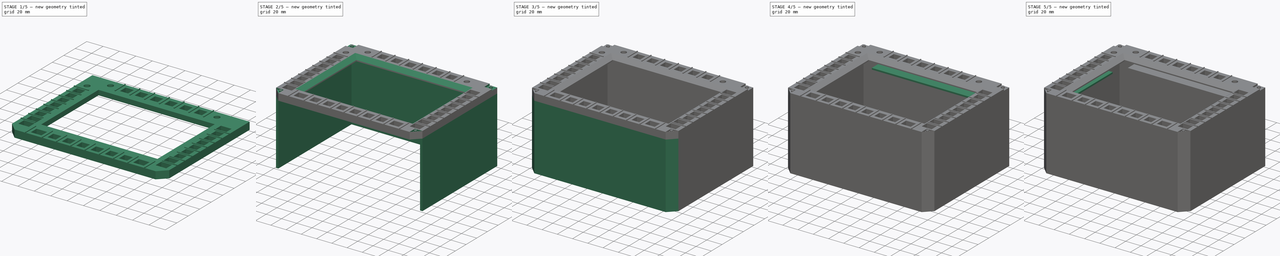
[diagram: build sequence overview — one tinted view per stage of 5, left to right]
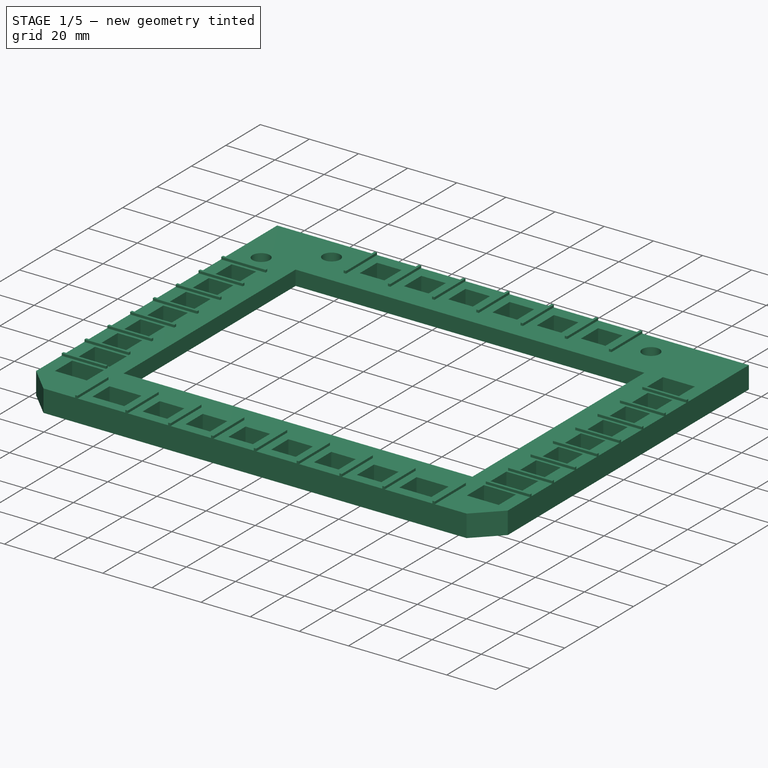
[diagram: stage 1 of 5 — iso view after this stage's code; geometry added in this stage tinted green]
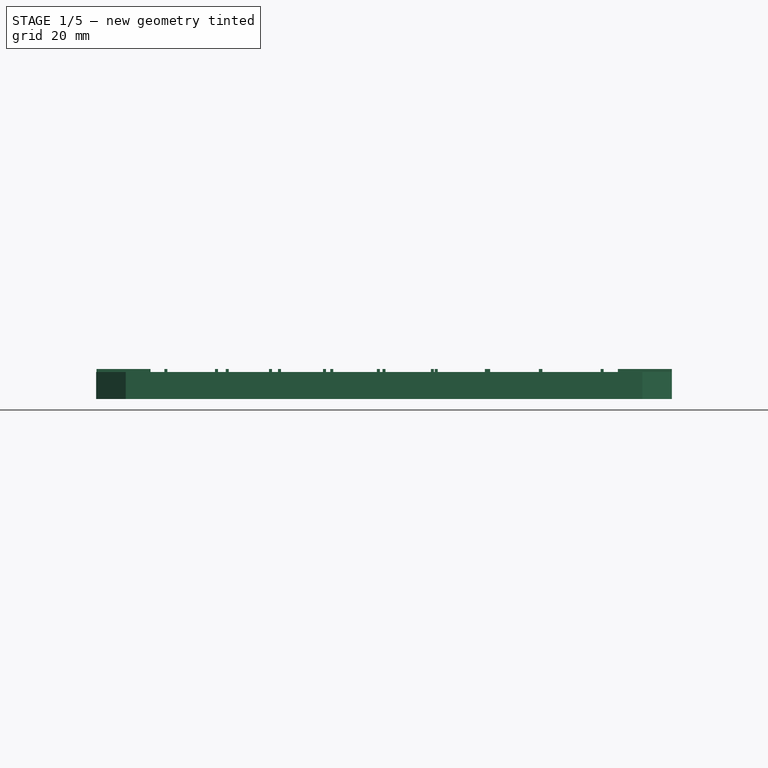
[diagram: stage 1 of 5 — front view after this stage's code; geometry added in this stage tinted green]
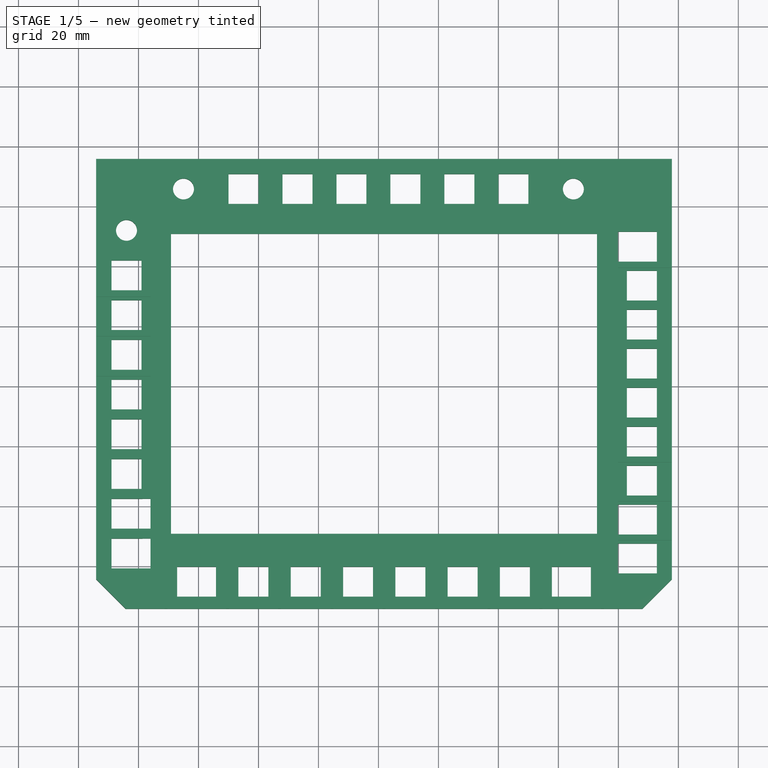
[diagram: stage 1 of 5 — top view after this stage's code; geometry added in this stage tinted green]
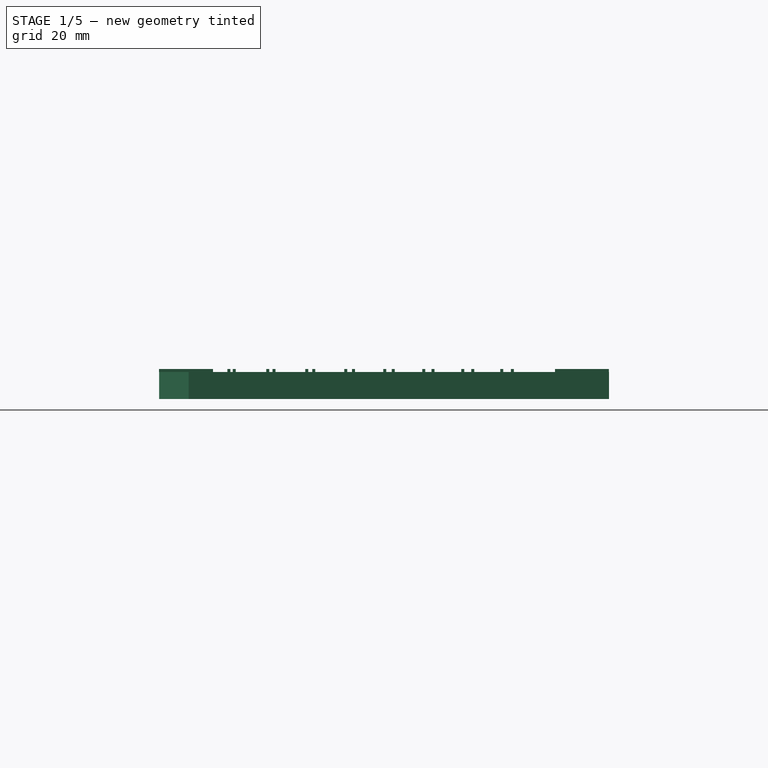
[diagram: stage 1 of 5 — right view after this stage's code; geometry added in this stage tinted green]
FCSTD DOCUMENT  (FreeCAD 0.21R33771 (Git))
Label: bezel-integration3
License: All rights reserved
LicenseURL: http://en.wikipedia.org/wiki/All_rights_reserved
objects: Sketcher::SketchObject×25, PartDesign::Pad×15, PartDesign::Pocket×8, PartDesign::Chamfer×6, PartDesign::Hole×2, PartDesign::Body×2, App::Part×1
note: 89 computed .brp shape members not serialized (recipe doc carries the construction recipe); baked Part::Feature solids carry a one-line shape summary decoded from their .brp

FEATURE [Sketcher::SketchObject] Sketch  label="bezel"
  FullyConstrained = true
  MapMode = 5
  Support = -> [XY_Plane]
  sketch-geometry (8):
    g0: LineSegment StartX=-69.1431 StartY=50.8022 StartZ=0 EndX=72.8569 EndY=50.8022 EndZ=0
    g1: LineSegment StartX=72.8569 StartY=50.8022 StartZ=0 EndX=72.8569 EndY=-49.1978 EndZ=0
    g2: LineSegment StartX=72.8569 StartY=-49.1978 StartZ=0 EndX=-69.1431 EndY=-49.1978 EndZ=0
    g3: LineSegment StartX=-69.1431 StartY=-49.1978 StartZ=0 EndX=-69.1431 EndY=50.8022 EndZ=0
    g4: LineSegment StartX=-94.1431 StartY=75.8022 StartZ=0 EndX=97.8569 EndY=75.8022 EndZ=0
    g5: LineSegment StartX=97.8569 StartY=75.8022 StartZ=0 EndX=97.8569 EndY=-74.1978 EndZ=0
    g6: LineSegment StartX=97.8569 StartY=-74.1978 StartZ=0 EndX=-94.1431 EndY=-74.1978 EndZ=0
    g7: LineSegment StartX=-94.1431 StartY=-74.1978 StartZ=0 EndX=-94.1431 EndY=75.8022 EndZ=0
  constraints (24):
    c: Coincident(g0,g1)
    c: Coincident(g1,g2)
    c: Coincident(g2,g3)
    c: Coincident(g3,g0)
    c: Horizontal(g0)
    c: Horizontal(g2)
    c: Vertical(g1)
    c: Vertical(g3)
    c: Coincident(g4,g5)
    c: Coincident(g5,g6)
    c: Coincident(g6,g7)
    c: Coincident(g7,g4)
    c: Horizontal(g4)
    c: Horizontal(g6)
    c: Vertical(g5)
    c: Vertical(g7)
    c: Distance(g-1,g0) = 85.8
    c: Distance(g-1,g0) = 88.82
    c: DistanceX(g0,g0) = 142
    c: Distance(g2,g6) = 25
    c: DistanceY(g1,g1) = 100
    c: Distance(g0,g4) = 25
    c: Distance(g0,g7) = 25
    c: Distance(g0,g5) = 25
FEATURE [PartDesign::Pad] Pad  label="Bezel"
  Direction = (0,0,1)
  Length = 9
  Length2 = 10
  Profile = -> Sketch
  ReferenceAxis = -> Sketch [N_Axis]
  Type = 0
FEATURE [Sketcher::SketchObject] Sketch001  label="Lcd Inset"
  FullyConstrained = true
  MapMode = 5
  Placement = pos=(0,0,0) rot=(1,0,0;3.14159rad)
  Support = -> [Pad]
  sketch-geometry (4):
    g0: LineSegment StartX=-78.66 StartY=60.5 StartZ=0 EndX=77.34 EndY=60.5 EndZ=0
    g1: LineSegment StartX=77.34 StartY=60.5 StartZ=0 EndX=77.34 EndY=-58.5 EndZ=0
    g2: LineSegment StartX=77.34 StartY=-58.5 StartZ=0 EndX=-78.66 EndY=-58.5 EndZ=0
    g3: LineSegment StartX=-78.66 StartY=-58.5 StartZ=0 EndX=-78.66 EndY=60.5 EndZ=0
  constraints (12):
    c: Coincident(g0,g1)
    c: Coincident(g1,g2)
    c: Coincident(g2,g3)
    c: Coincident(g3,g0)
    c: Horizontal(g0)
    c: Horizontal(g2)
    c: Vertical(g1)
    c: Vertical(g3)
    c: DistanceX(g0,g0) = 156
    c: DistanceY(g1,g1) = 119
    c: DistanceX(g-2,g2) = -78.66
    c: Distance(g-1,g0) = 60.5
FEATURE [PartDesign::Pocket] Pocket  label="Lcd Inset001"
  BaseFeature = -> Pad
  Direction = (0,0,1)
  Length = 3
  Length2 = 5
  Profile = -> Sketch001
  ReferenceAxis = -> Sketch001 [N_Axis]
  Type = 0
FEATURE [Sketcher::SketchObject] Sketch002  label="bottom buttons"
  FullyConstrained = true
  MapMode = 5
  Placement = pos=(0,0,9) rot=(0,0,1;0rad)
  Support = -> [Pocket]
  sketch-geometry (36):
    g0: LineSegment StartX=-94.14 StartY=75.79 StartZ=0 EndX=97.85 EndY=75.79 EndZ=0
    g1: LineSegment StartX=97.85 StartY=75.79 StartZ=0 EndX=97.85 EndY=-74.19 EndZ=0
    g2: LineSegment StartX=97.85 StartY=-74.19 StartZ=0 EndX=-94.14 EndY=-74.19 EndZ=0
    g3: LineSegment StartX=-94.14 StartY=-74.19 StartZ=0 EndX=-94.14 EndY=75.79 EndZ=0
    g4: LineSegment StartX=-67.14 StartY=-70.19 StartZ=0 EndX=-54.14 EndY=-70.19 EndZ=0
    g5: LineSegment StartX=-54.14 StartY=-70.19 StartZ=0 EndX=-54.14 EndY=-60.19 EndZ=0
    g6: LineSegment StartX=-54.14 StartY=-60.19 StartZ=0 EndX=-67.14 EndY=-60.19 EndZ=0
    g7: LineSegment StartX=-67.14 StartY=-60.19 StartZ=0 EndX=-67.14 EndY=-70.19 EndZ=0
    g8: LineSegment StartX=57.85 StartY=-60.19 StartZ=0 EndX=70.85 EndY=-60.19 EndZ=0
    g9: LineSegment StartX=70.85 StartY=-60.19 StartZ=0 EndX=70.85 EndY=-70.19 EndZ=0
    g10: LineSegment StartX=70.85 StartY=-70.19 StartZ=0 EndX=57.85 EndY=-70.19 EndZ=0
    g11: LineSegment StartX=57.85 StartY=-70.19 StartZ=0 EndX=57.85 EndY=-60.19 EndZ=0
    g12: LineSegment StartX=-46.71 StartY=-60.19 StartZ=0 EndX=-36.71 EndY=-60.19 EndZ=0
    g13: LineSegment StartX=-36.71 StartY=-60.19 StartZ=0 EndX=-36.71 EndY=-70.19 EndZ=0
    g14: LineSegment StartX=-36.71 StartY=-70.19 StartZ=0 EndX=-46.71 EndY=-70.19 EndZ=0
    g15: LineSegment StartX=-46.71 StartY=-70.19 StartZ=0 EndX=-46.71 EndY=-60.19 EndZ=0
    g16: LineSegment StartX=-29.22 StartY=-60.19 StartZ=0 EndX=-19.22 EndY=-60.19 EndZ=0
    g17: LineSegment StartX=-19.22 StartY=-60.19 StartZ=0 EndX=-19.22 EndY=-70.19 EndZ=0
    g18: LineSegment StartX=-19.22 StartY=-70.19 StartZ=0 EndX=-29.22 EndY=-70.19 EndZ=0
    g19: LineSegment StartX=-29.22 StartY=-70.19 StartZ=0 EndX=-29.22 EndY=-60.19 EndZ=0
    g20: LineSegment StartX=-11.79 StartY=-60.19 StartZ=0 EndX=-1.79 EndY=-60.19 EndZ=0
    g21: LineSegment StartX=-1.79 StartY=-60.19 StartZ=0 EndX=-1.79 EndY=-70.19 EndZ=0
    g22: LineSegment StartX=-1.79 StartY=-70.19 StartZ=0 EndX=-11.79 EndY=-70.19 EndZ=0
    g23: LineSegment StartX=-11.79 StartY=-70.19 StartZ=0 EndX=-11.79 EndY=-60.19 EndZ=0
    g24: LineSegment StartX=5.64 StartY=-60.19 StartZ=0 EndX=15.64 EndY=-60.19 EndZ=0
    g25: LineSegment StartX=15.64 StartY=-60.19 StartZ=0 EndX=15.64 EndY=-70.19 EndZ=0
    g26: LineSegment StartX=15.64 StartY=-70.19 StartZ=0 EndX=5.64 EndY=-70.19 EndZ=0
    g27: LineSegment StartX=5.64 StartY=-70.19 StartZ=0 EndX=5.64 EndY=-60.19 EndZ=0
    g28: LineSegment StartX=23.07 StartY=-60.19 StartZ=0 EndX=33.07 EndY=-60.19 EndZ=0
    g29: LineSegment StartX=33.07 StartY=-60.19 StartZ=0 EndX=33.07 EndY=-70.19 EndZ=0
    g30: LineSegment StartX=33.07 StartY=-70.19 StartZ=0 EndX=23.07 EndY=-70.19 EndZ=0
    g31: LineSegment StartX=23.07 StartY=-70.19 StartZ=0 EndX=23.07 EndY=-60.19 EndZ=0
    g32: LineSegment StartX=40.5 StartY=-60.19 StartZ=0 EndX=50.5 EndY=-60.19 EndZ=0
    g33: LineSegment StartX=50.5 StartY=-60.19 StartZ=0 EndX=50.5 EndY=-70.19 EndZ=0
    g34: LineSegment StartX=50.5 StartY=-70.19 StartZ=0 EndX=40.5 EndY=-70.19 EndZ=0
    g35: LineSegment StartX=40.5 StartY=-70.19 StartZ=0 EndX=40.5 EndY=-60.19 EndZ=0
  constraints (108):
    c: Coincident(g0,g1)
    c: Coincident(g1,g2)
    c: Coincident(g2,g3)
    c: Coincident(g3,g0)
    c: Horizontal(g0)
    c: Horizontal(g2)
    c: Vertical(g1)
    c: Vertical(g3)
    c: DistanceY(g-1,g1) = -74.19
    c: DistanceX(g-2,g2) = -94.14
    c: DistanceY(g3,g3) = 149.98
    c: DistanceX(g2,g2) = 191.99
    c: Coincident(g4,g5)
    c: Coincident(g5,g6)
    c: Coincident(g6,g7)
    c: Coincident(g7,g4)
    c: Horizontal(g4)
    c: Horizontal(g6)
    c: Vertical(g5)
    c: Vertical(g7)
    c: DistanceX(g4,g4) = 13
    c: DistanceY(g5,g5) = 10
    c: Distance(g4,g2) = 4
    c: Distance(g4,g3) = 27
    c: Coincident(g8,g9)
    c: Coincident(g9,g10)
    c: Coincident(g10,g11)
    c: Coincident(g11,g8)
    c: Horizontal(g8)
    c: Horizontal(g10)
    c: Vertical(g9)
    c: Vertical(g11)
    c: DistanceX(g10,g10) = 13
    c: DistanceY(g9,g9) = 10
    c: Distance(g9,g1) = 27
    c: Coincident(g12,g13)
    c: Coincident(g13,g14)
    c: Coincident(g14,g15)
    c: Coincident(g15,g12)
    c: Horizontal(g12)
    c: Horizontal(g14)
    c: Vertical(g13)
    c: Vertical(g15)
    c: Coincident(g16,g17)
    c: Coincident(g17,g18)
    c: Coincident(g18,g19)
    c: Coincident(g19,g16)
    c: Horizontal(g16)
    c: Horizontal(g18)
    c: Vertical(g17)
    c: Vertical(g19)
    c: Coincident(g20,g21)
    c: Coincident(g21,g22)
    c: Coincident(g22,g23)
    c: Coincident(g23,g20)
    c: Horizontal(g20)
    c: Horizontal(g22)
    c: Vertical(g21)
    c: Vertical(g23)
    c: Coincident(g24,g25)
    c: Coincident(g25,g26)
    c: Coincident(g26,g27)
    c: Coincident(g27,g24)
    c: Horizontal(g24)
    c: Horizontal(g26)
    c: Vertical(g25)
    c: Vertical(g27)
    c: Coincident(g28,g29)
    c: Coincident(g29,g30)
    c: Coincident(g30,g31)
    c: Coincident(g31,g28)
    c: Horizontal(g28)
    c: Horizontal(g30)
    c: Vertical(g29)
    c: Vertical(g31)
    c: Coincident(g32,g33)
    c: Coincident(g33,g34)
    c: Coincident(g34,g35)
    c: Coincident(g35,g32)
    c: Horizontal(g32)
    c: Horizontal(g34)
    c: Vertical(g33)
    c: Vertical(g35)
    c: DistanceX(g14,g14) = 10
    c: DistanceY(g13,g13) = 10
    c: Distance(g14,g5) = 7.43
    c: DistanceX(g18,g18) = 10
    c: DistanceY(g19,g19) = 10
    c: DistanceX(g22,g22) = 10
    c: DistanceY(g21,g21) = 10
    c: Distance(g22,g17) = 7.43
    c: DistanceX(g26,g26) = 10
    c: DistanceY(g27,g27) = 10
    c: Distance(g26,g21) = 7.43
    c: DistanceX(g30,g30) = 10
    c: DistanceY(g29,g29) = 10
    c: Distance(g30,g25) = 7.43
    c: DistanceY(g33,g33) = 10
    c: DistanceX(g34,g34) = 10
    c: DistanceX(g29,g34) = 7.43
    c: Distance(g13,g2) = 4
    c: Distance(g18,g2) = 4
    c: Distance(g22,g2) = 4
    c: Distance(g26,g2) = 4
    c: Distance(g30,g2) = 4
    c: Distance(g34,g2) = 4
    c: Distance(g10,g2) = 4
    c: Distance(g33,g10) = 7.35
FEATURE [Sketcher::SketchObject] Sketch003  label="other buttons"
  FullyConstrained = true
  MapMode = 5
  Placement = pos=(0,0,9) rot=(0,0,1;0rad)
  Support = -> [Pocket]
  sketch-geometry (99):
    g0: LineSegment StartX=-94 StartY=-64.33 StartZ=0 EndX=-94 EndY=-74.33 EndZ=0
    g1: LineSegment StartX=-89 StartY=-11 StartZ=0 EndX=-79 EndY=-11 EndZ=0
    g2: LineSegment StartX=-79 StartY=-11 StartZ=0 EndX=-79 EndY=-21 EndZ=0
    g3: LineSegment StartX=-79 StartY=-21 StartZ=0 EndX=-89 EndY=-21 EndZ=0
    g4: LineSegment StartX=-89 StartY=-21 StartZ=0 EndX=-89 EndY=-11 EndZ=0
    g5: LineSegment StartX=-89 StartY=2.25 StartZ=0 EndX=-79 EndY=2.25 EndZ=0
    g6: LineSegment StartX=-79 StartY=2.25 StartZ=0 EndX=-79 EndY=-7.75 EndZ=0
    g7: LineSegment StartX=-79 StartY=-7.75 StartZ=0 EndX=-89 EndY=-7.75 EndZ=0
    g8: LineSegment StartX=-89 StartY=-7.75 StartZ=0 EndX=-89 EndY=2.25 EndZ=0
    g9: LineSegment StartX=-89 StartY=15.5 StartZ=0 EndX=-79 EndY=15.5 EndZ=0
    g10: LineSegment StartX=-79 StartY=15.5 StartZ=0 EndX=-79 EndY=5.5 EndZ=0
    g11: LineSegment StartX=-79 StartY=5.5 StartZ=0 EndX=-89 EndY=5.5 EndZ=0
    g12: LineSegment StartX=-89 StartY=5.5 StartZ=0 EndX=-89 EndY=15.5 EndZ=0
    g13: LineSegment StartX=-89 StartY=28.75 StartZ=0 EndX=-79 EndY=28.75 EndZ=0
    g14: LineSegment StartX=-79 StartY=28.75 StartZ=0 EndX=-79 EndY=18.75 EndZ=0
    g15: LineSegment StartX=-79 StartY=18.75 StartZ=0 EndX=-89 EndY=18.75 EndZ=0
    g16: LineSegment StartX=-89 StartY=18.75 StartZ=0 EndX=-89 EndY=28.75 EndZ=0
    g17: LineSegment StartX=-89 StartY=42 StartZ=0 EndX=-79 EndY=42 EndZ=0
    g18: LineSegment StartX=-79 StartY=42 StartZ=0 EndX=-79 EndY=32 EndZ=0
    g19: LineSegment StartX=-79 StartY=32 StartZ=0 EndX=-89 EndY=32 EndZ=0
    g20: LineSegment StartX=-89 StartY=32 StartZ=0 EndX=-89 EndY=42 EndZ=0
    g21: Circle CenterX=-84 CenterY=52 CenterZ=0 NormalX=0 NormalY=0 NormalZ=1 AngleXU=0 Radius=3.5
    g22: LineSegment StartX=79.85 StartY=-52.44 StartZ=0 EndX=92.85 EndY=-52.44 EndZ=0
    g23: LineSegment StartX=92.85 StartY=-52.44 StartZ=0 EndX=92.85 EndY=-62.44 EndZ=0
    g24: LineSegment StartX=92.85 StartY=-62.44 StartZ=0 EndX=79.85 EndY=-62.44 EndZ=0
    g25: LineSegment StartX=79.85 StartY=-62.44 StartZ=0 EndX=79.85 EndY=-52.44 EndZ=0
    g26: LineSegment StartX=97.85 StartY=-74.19 StartZ=0 EndX=97.85 EndY=75.8 EndZ=0
    g27: LineSegment StartX=79.85 StartY=-39.44 StartZ=0 EndX=92.85 EndY=-39.44 EndZ=0
    g28: LineSegment StartX=92.85 StartY=-39.44 StartZ=0 EndX=92.85 EndY=-49.44 EndZ=0
    g29: LineSegment StartX=92.85 StartY=-49.44 StartZ=0 EndX=79.85 EndY=-49.44 EndZ=0
    g30: LineSegment StartX=79.85 StartY=-49.44 StartZ=0 EndX=79.85 EndY=-39.44 EndZ=0
    g31: LineSegment StartX=82.85 StartY=-26.44 StartZ=0 EndX=92.85 EndY=-26.44 EndZ=0
    g32: LineSegment StartX=92.85 StartY=-26.44 StartZ=0 EndX=92.85 EndY=-36.44 EndZ=0
    g33: LineSegment StartX=92.85 StartY=-36.44 StartZ=0 EndX=82.85 EndY=-36.44 EndZ=0
    g34: LineSegment StartX=82.85 StartY=-36.44 StartZ=0 EndX=82.85 EndY=-26.44 EndZ=0
    g35: LineSegment StartX=82.85 StartY=-13.44 StartZ=0 EndX=92.85 EndY=-13.44 EndZ=0
    g36: LineSegment StartX=92.85 StartY=-13.44 StartZ=0 EndX=92.85 EndY=-23.44 EndZ=0
    g37: LineSegment StartX=92.85 StartY=-23.44 StartZ=0 EndX=82.85 EndY=-23.44 EndZ=0
    g38: LineSegment StartX=82.85 StartY=-23.44 StartZ=0 EndX=82.85 EndY=-13.44 EndZ=0
    g39: LineSegment StartX=82.85 StartY=-0.44 StartZ=0 EndX=92.85 EndY=-0.44 EndZ=0
    g40: LineSegment StartX=92.85 StartY=-0.44 StartZ=0 EndX=92.85 EndY=-10.44 EndZ=0
    g41: LineSegment StartX=92.85 StartY=-10.44 StartZ=0 EndX=82.85 EndY=-10.44 EndZ=0
    g42: LineSegment StartX=82.85 StartY=-10.44 StartZ=0 EndX=82.85 EndY=-0.44 EndZ=0
    g43: LineSegment StartX=82.85 StartY=12.56 StartZ=0 EndX=92.85 EndY=12.56 EndZ=0
    g44: LineSegment StartX=92.85 StartY=12.56 StartZ=0 EndX=92.85 EndY=2.56 EndZ=0
    g45: LineSegment StartX=92.85 StartY=2.56 StartZ=0 EndX=82.85 EndY=2.56 EndZ=0
    g46: LineSegment StartX=82.85 StartY=2.56 StartZ=0 EndX=82.85 EndY=12.56 EndZ=0
    g47: LineSegment StartX=82.85 StartY=25.56 StartZ=0 EndX=92.85 EndY=25.56 EndZ=0
    g48: LineSegment StartX=92.85 StartY=25.56 StartZ=0 EndX=92.85 EndY=15.56 EndZ=0
    g49: LineSegment StartX=92.85 StartY=15.56 StartZ=0 EndX=82.85 EndY=15.56 EndZ=0
    g50: LineSegment StartX=82.85 StartY=15.56 StartZ=0 EndX=82.85 EndY=25.56 EndZ=0
    g51: LineSegment StartX=82.85 StartY=38.56 StartZ=0 EndX=92.85 EndY=38.56 EndZ=0
    g52: LineSegment StartX=92.85 StartY=38.56 StartZ=0 EndX=92.85 EndY=28.56 EndZ=0
    g53: LineSegment StartX=92.85 StartY=28.56 StartZ=0 EndX=82.85 EndY=28.56 EndZ=0
    g54: LineSegment StartX=82.85 StartY=28.56 StartZ=0 EndX=82.85 EndY=38.56 EndZ=0
    g55: LineSegment StartX=79.85 StartY=51.56 StartZ=0 EndX=92.85 EndY=51.56 EndZ=0
    g56: LineSegment StartX=92.85 StartY=51.56 StartZ=0 EndX=92.85 EndY=41.56 EndZ=0
    g57: LineSegment StartX=92.85 StartY=41.56 StartZ=0 EndX=79.85 EndY=41.56 EndZ=0
    g58: LineSegment StartX=79.85 StartY=41.56 StartZ=0 EndX=79.85 EndY=51.56 EndZ=0
    g59: LineSegment StartX=97.85 StartY=75.8 StartZ=0 EndX=-94 EndY=75.8 EndZ=0
    g60: Circle CenterX=-65 CenterY=65.8 CenterZ=0 NormalX=0 NormalY=0 NormalZ=1 AngleXU=0 Radius=3.5
    g61: Circle CenterX=65 CenterY=65.8 CenterZ=0 NormalX=0 NormalY=0 NormalZ=1 AngleXU=0 Radius=3.5
    g62: LineSegment StartX=-94 StartY=75.8 StartZ=0 EndX=-94 EndY=-74.33 EndZ=0
    g63: LineSegment StartX=-50 StartY=70.8 StartZ=0 EndX=-40 EndY=70.8 EndZ=0
    g64: LineSegment StartX=-40 StartY=70.8 StartZ=0 EndX=-40 EndY=60.8 EndZ=0
    g65: LineSegment StartX=-40 StartY=60.8 StartZ=0 EndX=-50 EndY=60.8 EndZ=0
    g66: LineSegment StartX=-50 StartY=60.8 StartZ=0 EndX=-50 EndY=70.8 EndZ=0
    g67: LineSegment StartX=-32 StartY=70.8 StartZ=0 EndX=-22 EndY=70.8 EndZ=0
    g68: LineSegment StartX=-22 StartY=70.8 StartZ=0 EndX=-22 EndY=60.8 EndZ=0
    g69: LineSegment StartX=-22 StartY=60.8 StartZ=0 EndX=-32 EndY=60.8 EndZ=0
    g70: LineSegment StartX=-32 StartY=60.8 StartZ=0 EndX=-32 EndY=70.8 EndZ=0
    g71: LineSegment StartX=-14 StartY=70.8 StartZ=0 EndX=-4 EndY=70.8 EndZ=0
    g72: LineSegment StartX=-4 StartY=70.8 StartZ=0 EndX=-4 EndY=60.8 EndZ=0
    g73: LineSegment StartX=-4 StartY=60.8 StartZ=0 EndX=-14 EndY=60.8 EndZ=0
    g74: LineSegment StartX=-14 StartY=60.8 StartZ=0 EndX=-14 EndY=70.8 EndZ=0
    g75: LineSegment StartX=4 StartY=70.8 StartZ=0 EndX=14 EndY=70.8 EndZ=0
    g76: LineSegment StartX=14 StartY=70.8 StartZ=0 EndX=14 EndY=60.8 EndZ=0
    g77: LineSegment StartX=14 StartY=60.8 StartZ=0 EndX=4 EndY=60.8 EndZ=0
    g78: LineSegment StartX=4 StartY=60.8 StartZ=0 EndX=4 EndY=70.8 EndZ=0
    g79: LineSegment StartX=22 StartY=70.8 StartZ=0 EndX=32 EndY=70.8 EndZ=0
    g80: LineSegment StartX=32 StartY=70.8 StartZ=0 EndX=32 EndY=60.8 EndZ=0
    g81: LineSegment StartX=32 StartY=60.8 StartZ=0 EndX=22 EndY=60.8 EndZ=0
    g82: LineSegment StartX=22 StartY=60.8 StartZ=0 EndX=22 EndY=70.8 EndZ=0
    g83: LineSegment StartX=40 StartY=70.8 StartZ=0 EndX=50 EndY=70.8 EndZ=0
    g84: LineSegment StartX=50 StartY=70.8 StartZ=0 EndX=50 EndY=60.8 EndZ=0
    g85: LineSegment StartX=50 StartY=60.8 StartZ=0 EndX=40 EndY=60.8 EndZ=0
    g86: LineSegment StartX=40 StartY=60.8 StartZ=0 EndX=40 EndY=70.8 EndZ=0
    g87: LineSegment StartX=-89 StartY=-24.25 StartZ=0 EndX=-79 EndY=-24.25 EndZ=0
    g88: LineSegment StartX=-79 StartY=-24.25 StartZ=0 EndX=-79 EndY=-34.25 EndZ=0
    g89: LineSegment StartX=-79 StartY=-34.25 StartZ=0 EndX=-89 EndY=-34.25 EndZ=0
    g90: LineSegment StartX=-89 StartY=-34.25 StartZ=0 EndX=-89 EndY=-24.25 EndZ=0
    g91: LineSegment StartX=-89 StartY=-37.5 StartZ=0 EndX=-76 EndY=-37.5 EndZ=0
    g92: LineSegment StartX=-76 StartY=-37.5 StartZ=0 EndX=-76 EndY=-47.5 EndZ=0
    g93: LineSegment StartX=-76 StartY=-47.5 StartZ=0 EndX=-89 EndY=-47.5 EndZ=0
    g94: LineSegment StartX=-89 StartY=-47.5 StartZ=0 EndX=-89 EndY=-37.5 EndZ=0
    g95: LineSegment StartX=-89 StartY=-50.75 StartZ=0 EndX=-76 EndY=-50.75 EndZ=0
    g96: LineSegment StartX=-76 StartY=-50.75 StartZ=0 EndX=-76 EndY=-60.75 EndZ=0
    g97: LineSegment StartX=-76 StartY=-60.75 StartZ=0 EndX=-89 EndY=-60.75 EndZ=0
    g98: LineSegment StartX=-89 StartY=-60.75 StartZ=0 EndX=-89 EndY=-50.75 EndZ=0
  constraints (298):
    c: DistanceX(g-2,g0) = -94
    c: DistanceY(g-1,g0) = -74.33
    c: Coincident(g1,g2)
    c: Coincident(g2,g3)
    c: Coincident(g3,g4)
    c: Coincident(g4,g1)
    c: Horizontal(g1)
    c: Vertical(g2)
    c: Vertical(g4)
    c: Coincident(g5,g6)
    c: Coincident(g6,g7)
    c: Coincident(g7,g8)
    c: Coincident(g8,g5)
    c: Horizontal(g5)
    c: Horizontal(g7)
    c: Vertical(g6)
    c: Vertical(g8)
    c: Coincident(g9,g10)
    c: Coincident(g10,g11)
    c: Coincident(g11,g12)
    c: Coincident(g12,g9)
    c: Horizontal(g9)
    c: Horizontal(g11)
    c: Vertical(g10)
    c: Vertical(g12)
    c: Coincident(g13,g14)
    c: Coincident(g14,g15)
    c: Coincident(g15,g16)
    c: Coincident(g16,g13)
    c: Horizontal(g13)
    c: Horizontal(g15)
    c: Vertical(g14)
    c: Vertical(g16)
    c: Coincident(g17,g18)
    c: Coincident(g18,g19)
    c: Coincident(g19,g20)
    c: Coincident(g20,g17)
    c: Horizontal(g17)
    c: Horizontal(g19)
    c: Vertical(g18)
    c: Vertical(g20)
    c: DistanceX(g3,g3) = 10
    c: DistanceX(g7,g7) = 10
    c: DistanceX(g11,g11) = 10
    c: DistanceX(g15,g15) = 10
    c: DistanceX(g17,g17) = 10
    c: DistanceY(g2,g2) = 10
    c: DistanceY(g6,g6) = 10
    c: DistanceY(g10,g10) = 10
    c: DistanceY(g14,g14) = 10
    c: DistanceY(g18,g18) = 10
    c: Distance(g3,g0) = 5
    c: Distance(g7,g0) = 5
    c: Distance(g11,g0) = 5
    c: Distance(g15,g0) = 5
    c: Distance(g19,g0) = 5
    c: Distance(g1,g7) = 3.25
    c: Distance(g5,g11) = 3.25
    c: Distance(g15,g9) = 3.25
    c: Distance(g19,g13) = 3.25
    c: Diameter(g21) = 7
    c: Distance(g21,g0) = 10
    c: DistanceY(g-1,g21) = 52
    c: Coincident(g22,g23)
    c: Coincident(g23,g24)
    c: Coincident(g24,g25)
    c: Coincident(g25,g22)
    c: Horizontal(g22)
    c: Horizontal(g24)
    c: Vertical(g23)
    c: Vertical(g25)
    c: DistanceY(g-1,g23) = -62.44
    c: DistanceY(g23,g23) = 10
    c: DistanceX(g22,g22) = 13
    c: Vertical(g26)
    c: DistanceX(g-2,g26) = 97.85
    c: DistanceY(g-1,g26) = 75.8
    c: DistanceY(g26,g26) = 149.99
    c: Distance(g23,g26) = 5
    c: Coincident(g27,g28)
    c: Coincident(g28,g29)
    c: Coincident(g29,g30)
    c: Coincident(g30,g27)
    c: Horizontal(g27)
    c: Horizontal(g29)
    c: Vertical(g28)
    c: Vertical(g30)
    c: Equal(g28,g23)
    c: Equal(g29,g22)
    c: Distance(g28,g26) = 5
    c: Distance(g22,g28) = 3
    c: Coincident(g31,g32)
    c: Coincident(g32,g33)
    c: Coincident(g33,g34)
    c: Coincident(g34,g31)
    c: Horizontal(g31)
    c: Horizontal(g33)
    c: Vertical(g32)
    c: Vertical(g34)
    c: DistanceX(g33,g33) = 10
    c: DistanceY(g32,g32) = 10
    c: Distance(g32,g26) = 5
    c: Distance(g27,g32) = 3
    c: Coincident(g35,g36)
    c: Coincident(g36,g37)
    c: Coincident(g37,g38)
    c: Coincident(g38,g35)
    c: Horizontal(g35)
    c: Horizontal(g37)
    c: Vertical(g36)
    c: Vertical(g38)
    c: Equal(g31,g37)
    c: Equal(g36,g32)
    c: DistanceY(g31,g36) = 3
    c: Distance(g36,g26) = 5
    c: Coincident(g39,g40)
    c: Coincident(g40,g41)
    c: Coincident(g41,g42)
    c: Coincident(g42,g39)
    c: Horizontal(g39)
    c: Horizontal(g41)
    c: Vertical(g40)
    c: Vertical(g42)
    c: Coincident(g43,g44)
    c: Coincident(g44,g45)
    c: Coincident(g45,g46)
    c: Coincident(g46,g43)
    c: Horizontal(g43)
    c: Horizontal(g45)
    c: Vertical(g44)
    c: Vertical(g46)
    c: Coincident(g47,g48)
    c: Coincident(g48,g49)
    c: Coincident(g49,g50)
    c: Coincident(g50,g47)
    c: Horizontal(g47)
    c: Horizontal(g49)
    c: Vertical(g48)
    c: Vertical(g50)
    c: Coincident(g51,g52)
    c: Coincident(g52,g53)
    c: Coincident(g53,g54)
    c: Coincident(g54,g51)
    c: Horizontal(g51)
    c: Horizontal(g53)
    c: Vertical(g52)
    c: Vertical(g54)
    c: Coincident(g55,g56)
    c: Coincident(g56,g57)
    c: Coincident(g57,g58)
    c: Coincident(g58,g55)
    c: Horizontal(g55)
    c: Vertical(g56)
    c: Equal(g41,g35)
    c: Equal(g40,g36)
    c: Equal(g45,g39)
    c: Equal(g44,g40)
    c: Distance(g40,g26) = 5
    c: Distance(g40,g35) = 3
    c: Distance(g44,g26) = 5
    c: Distance(g39,g44) = 3
    c: Equal(g49,g43)
    c: Equal(g44,g48)
    c: Distance(g48,g43) = 3
    c: Distance(g48,g26) = 5
    c: Equal(g53,g47)
    c: Equal(g52,g48)
    c: Distance(g52,g26) = 5
    c: Distance(g53,g47) = 3
    c: Equal(g58,g54)
    c: Distance(g56,g26) = 5
    c: DistanceX(g57,g57) = 13
    c: Distance(g51,g57) = 3
    c: DistanceY(g56,g56) = 10
    c: DistanceX(g-2,g55) = 79.85
    c: Coincident(g59,g26)
    c: Horizontal(g59)
    c: Diameter(g60) = 7
    c: Distance(g60,g59) = 10
    c: DistanceX(g-2,g60) = -65
    c: Diameter(g61) = 7
    c: DistanceX(g-2,g61) = 65
    c: Distance(g61,g59) = 10
    c: Coincident(g62,g59)
    c: Coincident(g62,g0)
    c: Vertical(g62)
    c: Coincident(g63,g64)
    c: Coincident(g64,g65)
    c: Coincident(g65,g66)
    c: Coincident(g66,g63)
    c: Horizontal(g63)
    c: Horizontal(g65)
    c: Vertical(g64)
    c: Vertical(g66)
    c: Coincident(g67,g68)
    c: Coincident(g68,g69)
    c: Coincident(g69,g70)
    c: Coincident(g70,g67)
    c: Horizontal(g67)
    c: Horizontal(g69)
    c: Vertical(g68)
    c: Vertical(g70)
    c: Coincident(g71,g72)
    c: Coincident(g72,g73)
    c: Coincident(g73,g74)
    c: Coincident(g74,g71)
    c: Horizontal(g71)
    c: Horizontal(g73)
    c: Vertical(g72)
    c: Vertical(g74)
    c: Coincident(g75,g76)
    c: Coincident(g76,g77)
    c: Coincident(g77,g78)
    c: Coincident(g78,g75)
    c: Horizontal(g75)
    c: Horizontal(g77)
    c: Vertical(g76)
    c: Vertical(g78)
    c: Coincident(g79,g80)
    c: Coincident(g80,g81)
    c: Coincident(g81,g82)
    c: Coincident(g82,g79)
    c: Horizontal(g79)
    c: Horizontal(g81)
    c: Vertical(g80)
    c: Vertical(g82)
    c: Coincident(g83,g84)
    c: Coincident(g84,g85)
    c: Coincident(g85,g86)
    c: Coincident(g86,g83)
    c: Horizontal(g83)
    c: Horizontal(g85)
    c: Vertical(g84)
    c: Vertical(g86)
    c: DistanceX(g63,g63) = 10
    c: DistanceY(g64,g64) = 10
    c: Equal(g70,g74)
    c: Equal(g74,g78)
    c: Equal(g78,g82)
    c: Equal(g82,g86)
    c: Equal(g86,g64)
    c: Equal(g63,g67)
    c: Equal(g67,g71)
    c: Equal(g71,g75)
    c: Equal(g75,g79)
    c: Equal(g79,g83)
    c: Distance(g63,g59) = 5
    c: Distance(g60,g66) = 15
    c: Distance(g67,g59) = 5
    c: Distance(g71,g59) = 5
    c: Distance(g75,g59) = 5
    c: Distance(g79,g59) = 5
    c: Distance(g83,g59) = 5
    c: Distance(g61,g84) = 15
    c: Distance(g80,g85) = 8
    c: Distance(g81,g76) = 8
    c: Distance(g69,g64) = 8
    c: Distance(g68,g73) = 8
    c: Distance(g21,g17) = 10
    c: Coincident(g87,g88)
    c: Coincident(g88,g89)
    c: Coincident(g89,g90)
    c: Coincident(g90,g87)
    c: Horizontal(g87)
    c: Horizontal(g89)
    c: Vertical(g88)
    c: Vertical(g90)
    c: Equal(g87,g3)
    c: Equal(g2,g88)
    c: Distance(g87,g62) = 5
    c: Distance(g2,g87) = 3.25
    c: DistanceX(g87,g87) = 10
    c: Coincident(g91,g92)
    c: Coincident(g92,g93)
    c: Coincident(g93,g94)
    c: Coincident(g94,g91)
    c: Horizontal(g91)
    c: Horizontal(g93)
    c: Vertical(g92)
    c: Vertical(g94)
    c: Equal(g94,g90)
    c: Distance(g91,g62) = 5
    c: Distance(g91,g89) = 3.25
    c: DistanceX(g91,g91) = 13
    c: Coincident(g95,g96)
    c: Coincident(g96,g97)
    c: Coincident(g97,g98)
    c: Coincident(g98,g95)
    c: Horizontal(g95)
    c: Horizontal(g97)
    c: Vertical(g96)
    c: Vertical(g98)
    c: Equal(g98,g94)
    c: Equal(g95,g93)
    c: Distance(g95,g62) = 5
    c: Distance(g93,g95) = 3.25
    c: DistanceY(g-1,g95) = -50.75
    c: DistanceY(g-1,g0) = -64.33
FEATURE [Sketcher::SketchObject] Sketch004  label="nubs"
  FullyConstrained = true
  MapMode = 5
  Placement = pos=(0,0,9) rot=(0,0,1;0rad)
  Support = -> [Pocket]
  sketch-geometry (133):
    g0: LineSegment StartX=-94 StartY=-48.625 StartZ=0 EndX=-76 EndY=-48.625 EndZ=0
    g1: LineSegment StartX=-76 StartY=-48.625 StartZ=0 EndX=-76 EndY=-49.625 EndZ=0
    g2: LineSegment StartX=-76 StartY=-49.625 StartZ=0 EndX=-94 EndY=-49.625 EndZ=0
    g3: LineSegment StartX=-94 StartY=-49.625 StartZ=0 EndX=-94 EndY=-48.625 EndZ=0
    g4: LineSegment StartX=-89 StartY=-47.5 StartZ=0 EndX=-76 EndY=-47.5 EndZ=0
    g5: LineSegment StartX=-76 StartY=-50.75 StartZ=0 EndX=-89 EndY=-50.75 EndZ=0
    g6: LineSegment StartX=-94 StartY=-35.375 StartZ=0 EndX=-76 EndY=-35.375 EndZ=0
    g7: LineSegment StartX=-76 StartY=-35.375 StartZ=0 EndX=-76 EndY=-36.375 EndZ=0
    g8: LineSegment StartX=-76 StartY=-36.375 StartZ=0 EndX=-94 EndY=-36.375 EndZ=0
    g9: LineSegment StartX=-94 StartY=-36.375 StartZ=0 EndX=-94 EndY=-35.375 EndZ=0
    g10: LineSegment StartX=-94 StartY=-22.125 StartZ=0 EndX=-76 EndY=-22.125 EndZ=0
    g11: LineSegment StartX=-76 StartY=-22.125 StartZ=0 EndX=-76 EndY=-23.125 EndZ=0
    g12: LineSegment StartX=-76 StartY=-23.125 StartZ=0 EndX=-94 EndY=-23.125 EndZ=0
    g13: LineSegment StartX=-94 StartY=-23.125 StartZ=0 EndX=-94 EndY=-22.125 EndZ=0
    g14: LineSegment StartX=-94 StartY=-8.875 StartZ=0 EndX=-76 EndY=-8.875 EndZ=0
    g15: LineSegment StartX=-76 StartY=-8.875 StartZ=0 EndX=-76 EndY=-9.875 EndZ=0
    g16: LineSegment StartX=-76 StartY=-9.875 StartZ=0 EndX=-94 EndY=-9.875 EndZ=0
    g17: LineSegment StartX=-94 StartY=-9.875 StartZ=0 EndX=-94 EndY=-8.875 EndZ=0
    g18: LineSegment StartX=-94 StartY=4.375 StartZ=0 EndX=-76 EndY=4.375 EndZ=0
    g19: LineSegment StartX=-76 StartY=4.375 StartZ=0 EndX=-76 EndY=3.375 EndZ=0
    g20: LineSegment StartX=-76 StartY=3.375 StartZ=0 EndX=-94 EndY=3.375 EndZ=0
    g21: LineSegment StartX=-94 StartY=3.375 StartZ=0 EndX=-94 EndY=4.375 EndZ=0
    g22: LineSegment StartX=-94 StartY=17.625 StartZ=0 EndX=-76 EndY=17.625 EndZ=0
    g23: LineSegment StartX=-76 StartY=17.625 StartZ=0 EndX=-76 EndY=16.625 EndZ=0
    g24: LineSegment StartX=-76 StartY=16.625 StartZ=0 EndX=-94 EndY=16.625 EndZ=0
    g25: LineSegment StartX=-94 StartY=16.625 StartZ=0 EndX=-94 EndY=17.625 EndZ=0
    g26: LineSegment StartX=-94 StartY=30.875 StartZ=0 EndX=-76 EndY=30.875 EndZ=0
    g27: LineSegment StartX=-76 StartY=30.875 StartZ=0 EndX=-76 EndY=29.875 EndZ=0
    g28: LineSegment StartX=-76 StartY=29.875 StartZ=0 EndX=-94 EndY=29.875 EndZ=0
    g29: LineSegment StartX=-94 StartY=29.875 StartZ=0 EndX=-94 EndY=30.875 EndZ=0
    g30: LineSegment StartX=-94 StartY=44.125 StartZ=0 EndX=-76 EndY=44.125 EndZ=0
    g31: LineSegment StartX=-76 StartY=44.125 StartZ=0 EndX=-76 EndY=43.125 EndZ=0
    g32: LineSegment StartX=-76 StartY=43.125 StartZ=0 EndX=-94 EndY=43.125 EndZ=0
    g33: LineSegment StartX=-94 StartY=43.125 StartZ=0 EndX=-94 EndY=44.125 EndZ=0
    g34: LineSegment StartX=-53.5 StartY=57.8 StartZ=0 EndX=-54.5 EndY=57.8 EndZ=0
    g35: LineSegment StartX=-54.5 StartY=57.8 StartZ=0 EndX=-54.5 EndY=75.8 EndZ=0
    g36: LineSegment StartX=-54.5 StartY=75.8 StartZ=0 EndX=-53.5 EndY=75.8 EndZ=0
    g37: LineSegment StartX=-53.5 StartY=75.8 StartZ=0 EndX=-53.5 EndY=57.8 EndZ=0
    g38: LineSegment StartX=-36.5 StartY=75.8 StartZ=0 EndX=-35.5 EndY=75.8 EndZ=0
    g39: LineSegment StartX=-35.5 StartY=75.8 StartZ=0 EndX=-35.5 EndY=57.8 EndZ=0
    g40: LineSegment StartX=-35.5 StartY=57.8 StartZ=0 EndX=-36.5 EndY=57.8 EndZ=0
    g41: LineSegment StartX=-36.5 StartY=57.8 StartZ=0 EndX=-36.5 EndY=75.8 EndZ=0
    g42: LineSegment StartX=-18.5 StartY=75.8 StartZ=0 EndX=-17.5 EndY=75.8 EndZ=0
    g43: LineSegment StartX=-17.5 StartY=75.8 StartZ=0 EndX=-17.5 EndY=57.8 EndZ=0
    g44: LineSegment StartX=-17.5 StartY=57.8 StartZ=0 EndX=-18.5 EndY=57.8 EndZ=0
    g45: LineSegment StartX=-18.5 StartY=57.8 StartZ=0 EndX=-18.5 EndY=75.8 EndZ=0
    g46: LineSegment StartX=-0.5 StartY=75.8 StartZ=0 EndX=0.5 EndY=75.8 EndZ=0
    g47: LineSegment StartX=0.5 StartY=75.8 StartZ=0 EndX=0.5 EndY=57.8 EndZ=0
    g48: LineSegment StartX=0.5 StartY=57.8 StartZ=0 EndX=-0.5 EndY=57.8 EndZ=0
    g49: LineSegment StartX=-0.5 StartY=57.8 StartZ=0 EndX=-0.5 EndY=75.8 EndZ=0
    g50: LineSegment StartX=17.5 StartY=75.8 StartZ=0 EndX=18.5 EndY=75.8 EndZ=0
    g51: LineSegment StartX=18.5 StartY=75.8 StartZ=0 EndX=18.5 EndY=57.8 EndZ=0
    g52: LineSegment StartX=18.5 StartY=57.8 StartZ=0 EndX=17.5 EndY=57.8 EndZ=0
    g53: LineSegment StartX=17.5 StartY=57.8 StartZ=0 EndX=17.5 EndY=75.8 EndZ=0
    g54: LineSegment StartX=35.5 StartY=75.8 StartZ=0 EndX=36.5 EndY=75.8 EndZ=0
    g55: LineSegment StartX=36.5 StartY=75.8 StartZ=0 EndX=36.5 EndY=57.8 EndZ=0
    g56: LineSegment StartX=36.5 StartY=57.8 StartZ=0 EndX=35.5 EndY=57.8 EndZ=0
    g57: LineSegment StartX=35.5 StartY=57.8 StartZ=0 EndX=35.5 EndY=75.8 EndZ=0
    g58: LineSegment StartX=53.5 StartY=75.8 StartZ=0 EndX=54.5 EndY=75.8 EndZ=0
    g59: LineSegment StartX=54.5 StartY=75.8 StartZ=0 EndX=54.5 EndY=57.8 EndZ=0
    g60: LineSegment StartX=54.5 StartY=57.8 StartZ=0 EndX=53.5 EndY=57.8 EndZ=0
    g61: LineSegment StartX=53.5 StartY=57.8 StartZ=0 EndX=53.5 EndY=75.8 EndZ=0
    g62: LineSegment StartX=79.85 StartY=40.56 StartZ=0 EndX=97.85 EndY=40.56 EndZ=0
    g63: LineSegment StartX=97.85 StartY=40.56 StartZ=0 EndX=97.85 EndY=39.56 EndZ=0
    g64: LineSegment StartX=97.85 StartY=39.56 StartZ=0 EndX=79.85 EndY=39.56 EndZ=0
    g65: LineSegment StartX=79.85 StartY=39.56 StartZ=0 EndX=79.85 EndY=40.56 EndZ=0
    g66: LineSegment StartX=79.85 StartY=27.56 StartZ=0 EndX=97.85 EndY=27.56 EndZ=0
    g67: LineSegment StartX=97.85 StartY=27.56 StartZ=0 EndX=97.85 EndY=26.56 EndZ=0
    g68: LineSegment StartX=97.85 StartY=26.56 StartZ=0 EndX=79.85 EndY=26.56 EndZ=0
    g69: LineSegment StartX=79.85 StartY=26.56 StartZ=0 EndX=79.85 EndY=27.56 EndZ=0
    g70: LineSegment StartX=79.85 StartY=14.56 StartZ=0 EndX=97.85 EndY=14.56 EndZ=0
    g71: LineSegment StartX=97.85 StartY=14.56 StartZ=0 EndX=97.85 EndY=13.56 EndZ=0
    g72: LineSegment StartX=97.85 StartY=13.56 StartZ=0 EndX=79.85 EndY=13.56 EndZ=0
    g73: LineSegment StartX=79.85 StartY=13.56 StartZ=0 EndX=79.85 EndY=14.56 EndZ=0
    g74: LineSegment StartX=79.85 StartY=1.56 StartZ=0 EndX=97.85 EndY=1.56 EndZ=0
    g75: LineSegment StartX=97.85 StartY=1.56 StartZ=0 EndX=97.85 EndY=0.56 EndZ=0
    g76: LineSegment StartX=97.85 StartY=0.56 StartZ=0 EndX=79.85 EndY=0.56 EndZ=0
    g77: LineSegment StartX=79.85 StartY=0.56 StartZ=0 EndX=79.85 EndY=1.56 EndZ=0
    g78: LineSegment StartX=79.85 StartY=-11.44 StartZ=0 EndX=97.85 EndY=-11.44 EndZ=0
    g79: LineSegment StartX=97.85 StartY=-11.44 StartZ=0 EndX=97.85 EndY=-12.44 EndZ=0
    g80: LineSegment StartX=97.85 StartY=-12.44 StartZ=0 EndX=79.85 EndY=-12.44 EndZ=0
    g81: LineSegment StartX=79.85 StartY=-12.44 StartZ=0 EndX=79.85 EndY=-11.44 EndZ=0
    g82: LineSegment StartX=79.85 StartY=-24.44 StartZ=0 EndX=97.85 EndY=-24.44 EndZ=0
    g83: LineSegment StartX=97.85 StartY=-24.44 StartZ=0 EndX=97.85 EndY=-25.44 EndZ=0
    g84: LineSegment StartX=97.85 StartY=-25.44 StartZ=0 EndX=79.85 EndY=-25.44 EndZ=0
    g85: LineSegment StartX=79.85 StartY=-25.44 StartZ=0 EndX=79.85 EndY=-24.44 EndZ=0
    g86: LineSegment StartX=79.85 StartY=-37.44 StartZ=0 EndX=97.85 EndY=-37.44 EndZ=0
    g87: LineSegment StartX=97.85 StartY=-37.44 StartZ=0 EndX=97.85 EndY=-38.44 EndZ=0
    g88: LineSegment StartX=97.85 StartY=-38.44 StartZ=0 EndX=79.85 EndY=-38.44 EndZ=0
    g89: LineSegment StartX=79.85 StartY=-38.44 StartZ=0 EndX=79.85 EndY=-37.44 EndZ=0
    g90: LineSegment StartX=79.85 StartY=-50.44 StartZ=0 EndX=97.85 EndY=-50.44 EndZ=0
    g91: LineSegment StartX=97.85 StartY=-50.44 StartZ=0 EndX=97.85 EndY=-51.44 EndZ=0
    g92: LineSegment StartX=97.85 StartY=-51.44 StartZ=0 EndX=79.85 EndY=-51.44 EndZ=0
    g93: LineSegment StartX=79.85 StartY=-51.44 StartZ=0 EndX=79.85 EndY=-50.44 EndZ=0
    g94: LineSegment StartX=53.655 StartY=-56.2 StartZ=0 EndX=54.655 EndY=-56.2 EndZ=0
    g95: LineSegment StartX=54.655 StartY=-56.2 StartZ=0 EndX=54.655 EndY=-74.2 EndZ=0
    g96: LineSegment StartX=54.655 StartY=-74.2 StartZ=0 EndX=53.655 EndY=-74.2 EndZ=0
    g97: LineSegment StartX=53.655 StartY=-74.2 StartZ=0 EndX=53.655 EndY=-56.2 EndZ=0
    g98: LineSegment StartX=36.225 StartY=-56.2 StartZ=0 EndX=37.225 EndY=-56.2 EndZ=0
    g99: LineSegment StartX=37.225 StartY=-56.2 StartZ=0 EndX=37.225 EndY=-74.2 EndZ=0
    g100: LineSegment StartX=37.225 StartY=-74.2 StartZ=0 EndX=36.225 EndY=-74.2 EndZ=0
    g101: LineSegment StartX=36.225 StartY=-74.2 StartZ=0 EndX=36.225 EndY=-56.2 EndZ=0
    g102: LineSegment StartX=74.085 StartY=-56.2 StartZ=0 EndX=75.085 EndY=-56.2 EndZ=0
    g103: LineSegment StartX=75.085 StartY=-56.2 StartZ=0 EndX=75.085 EndY=-74.2 EndZ=0
    g104: LineSegment StartX=75.085 StartY=-74.2 StartZ=0 EndX=74.085 EndY=-74.2 EndZ=0
    g105: LineSegment StartX=74.085 StartY=-74.2 StartZ=0 EndX=74.085 EndY=-56.2 EndZ=0
    g106: LineSegment StartX=18.795 StartY=-56.2 StartZ=0 EndX=19.795 EndY=-56.2 EndZ=0
    g107: LineSegment StartX=19.795 StartY=-56.2 StartZ=0 EndX=19.795 EndY=-74.2 EndZ=0
    g108: LineSegment StartX=19.795 StartY=-74.2 StartZ=0 EndX=18.795 EndY=-74.2 EndZ=0
    g109: LineSegment StartX=18.795 StartY=-74.2 StartZ=0 EndX=18.795 EndY=-56.2 EndZ=0
    g110: LineSegment StartX=1.365 StartY=-56.2 StartZ=0 EndX=2.365 EndY=-56.2 EndZ=0
    g111: LineSegment StartX=2.365 StartY=-56.2 StartZ=0 EndX=2.365 EndY=-74.2 EndZ=0
    g112: LineSegment StartX=2.365 StartY=-74.2 StartZ=0 EndX=1.365 EndY=-74.2 EndZ=0
    g113: LineSegment StartX=1.365 StartY=-74.2 StartZ=0 EndX=1.365 EndY=-56.2 EndZ=0
    g114: LineSegment StartX=-16.065 StartY=-56.2 StartZ=0 EndX=-15.065 EndY=-56.2 EndZ=0
    g115: LineSegment StartX=-15.065 StartY=-56.2 StartZ=0 EndX=-15.065 EndY=-74.2 EndZ=0
    g116: LineSegment StartX=-15.065 StartY=-74.2 StartZ=0 EndX=-16.065 EndY=-74.2 EndZ=0
    g117: LineSegment StartX=-16.065 StartY=-74.2 StartZ=0 EndX=-16.065 EndY=-56.2 EndZ=0
    g118: LineSegment StartX=-33.495 StartY=-56.2 StartZ=0 EndX=-32.495 EndY=-56.2 EndZ=0
    g119: LineSegment StartX=-32.495 StartY=-56.2 StartZ=0 EndX=-32.495 EndY=-74.2 EndZ=0
    g120: LineSegment StartX=-32.495 StartY=-74.2 StartZ=0 EndX=-33.495 EndY=-74.2 EndZ=0
    g121: LineSegment StartX=-33.495 StartY=-74.2 StartZ=0 EndX=-33.495 EndY=-56.2 EndZ=0
    g122: LineSegment StartX=-50.925 StartY=-56.2 StartZ=0 EndX=-49.925 EndY=-56.2 EndZ=0
    g123: LineSegment StartX=-49.925 StartY=-56.2 StartZ=0 EndX=-49.925 EndY=-74.2 EndZ=0
    g124: LineSegment StartX=-49.925 StartY=-74.2 StartZ=0 EndX=-50.925 EndY=-74.2 EndZ=0
    g125: LineSegment StartX=-50.925 StartY=-74.2 StartZ=0 EndX=-50.925 EndY=-56.2 EndZ=0
    g126: LineSegment StartX=-71.355 StartY=-56.2 StartZ=0 EndX=-70.355 EndY=-56.2 EndZ=0
    g127: LineSegment StartX=-70.355 StartY=-56.2 StartZ=0 EndX=-70.355 EndY=-74.2 EndZ=0
    g128: LineSegment StartX=-70.355 StartY=-74.2 StartZ=0 EndX=-71.355 EndY=-74.2 EndZ=0
    g129: LineSegment StartX=-71.355 StartY=-74.2 StartZ=0 EndX=-71.355 EndY=-56.2 EndZ=0
    g130: LineSegment StartX=-67.14 StartY=-70.19 StartZ=0 EndX=-67.14 EndY=-60.19 EndZ=0
    g131: LineSegment StartX=92.85 StartY=-52.44 StartZ=0 EndX=79.85 EndY=-52.44 EndZ=0
    g132: LineSegment StartX=50 StartY=70.8 StartZ=0 EndX=50 EndY=60.8 EndZ=0
  constraints (404):
    c: Coincident(g0,g1)
    c: Coincident(g1,g2)
    c: Coincident(g2,g3)
    c: Coincident(g3,g0)
    c: Horizontal(g0)
    c: Horizontal(g2)
    c: Vertical(g1)
    c: Vertical(g3)
    c: DistanceY(g1,g1) = 1
    c: DistanceX(g2,g2) = 18
    c: Horizontal(g4)
    c: Horizontal(g5)
    c: DistanceX(g5,g5) = 13
    c: DistanceX(g4,g4) = 13
    c: DistanceY(g-1,g5) = -50.75
    c: DistanceY(g-1,g4) = -47.5
    c: DistanceX(g-2,g4) = -76
    c: DistanceX(g-2,g5) = -76
    c: Distance(g0,g4) = 1.125
    c: DistanceX(g-2,g0) = -76
    c: Coincident(g6,g7)
    c: Coincident(g7,g8)
    c: Coincident(g8,g9)
    c: Coincident(g9,g6)
    c: Horizontal(g6)
    c: Horizontal(g8)
    c: Vertical(g7)
    c: Vertical(g9)
    c: Equal(g8,g0)
    c: Equal(g9,g3)
    c: DistanceX(g-2,g7) = -76
    c: Distance(g7,g0) = 12.25
    c: Coincident(g10,g11)
    c: Coincident(g11,g12)
    c: Coincident(g12,g13)
    c: Coincident(g13,g10)
    c: Horizontal(g10)
    c: Horizontal(g12)
    c: Vertical(g11)
    c: Vertical(g13)
    c: Coincident(g14,g15)
    c: Coincident(g15,g16)
    c: Coincident(g16,g17)
    c: Coincident(g17,g14)
    c: Horizontal(g14)
    c: Horizontal(g16)
    c: Vertical(g15)
    c: Vertical(g17)
    c: Coincident(g18,g19)
    c: Coincident(g19,g20)
    c: Coincident(g20,g21)
    c: Coincident(g21,g18)
    c: Horizontal(g18)
    c: Horizontal(g20)
    c: Vertical(g19)
    c: Vertical(g21)
    c: Coincident(g22,g23)
    c: Coincident(g23,g24)
    c: Coincident(g24,g25)
    c: Coincident(g25,g22)
    c: Horizontal(g22)
    c: Horizontal(g24)
    c: Vertical(g23)
    c: Vertical(g25)
    c: Coincident(g26,g27)
    c: Coincident(g27,g28)
    c: Coincident(g28,g29)
    c: Coincident(g29,g26)
    c: Horizontal(g26)
    c: Horizontal(g28)
    c: Vertical(g27)
    c: Vertical(g29)
    c: Coincident(g30,g31)
    c: Coincident(g31,g32)
    c: Coincident(g32,g33)
    c: Coincident(g33,g30)
    c: Horizontal(g30)
    c: Horizontal(g32)
    c: Vertical(g31)
    c: Vertical(g33)
    c: Coincident(g34,g35)
    c: Coincident(g35,g36)
    c: Coincident(g36,g37)
    c: Coincident(g37,g34)
    c: Horizontal(g34)
    c: Horizontal(g36)
    c: Vertical(g35)
    c: Vertical(g37)
    c: Coincident(g38,g39)
    c: Coincident(g39,g40)
    c: Coincident(g40,g41)
    c: Coincident(g41,g38)
    c: Horizontal(g38)
    c: Horizontal(g40)
    c: Vertical(g39)
    c: Vertical(g41)
    c: Coincident(g42,g43)
    c: Coincident(g43,g44)
    c: Coincident(g44,g45)
    c: Coincident(g45,g42)
    c: Horizontal(g42)
    c: Horizontal(g44)
    c: Vertical(g43)
    c: Vertical(g45)
    c: Coincident(g46,g47)
    c: Coincident(g47,g48)
    c: Coincident(g48,g49)
    c: Coincident(g49,g46)
    c: Horizontal(g46)
    c: Horizontal(g48)
    c: Vertical(g47)
    c: Vertical(g49)
    c: Coincident(g50,g51)
    c: Coincident(g51,g52)
    c: Coincident(g52,g53)
    c: Coincident(g53,g50)
    c: Horizontal(g50)
    c: Horizontal(g52)
    c: Vertical(g51)
    c: Vertical(g53)
    c: Coincident(g54,g55)
    c: Coincident(g55,g56)
    c: Coincident(g56,g57)
    c: Coincident(g57,g54)
    c: Horizontal(g54)
    c: Horizontal(g56)
    c: Vertical(g55)
    c: Vertical(g57)
    c: Coincident(g58,g59)
    c: Coincident(g59,g60)
    c: Coincident(g60,g61)
    c: Coincident(g61,g58)
    c: Horizontal(g58)
    c: Horizontal(g60)
    c: Vertical(g59)
    c: Vertical(g61)
    c: Coincident(g62,g63)
    c: Coincident(g63,g64)
    c: Coincident(g64,g65)
    c: Coincident(g65,g62)
    c: Horizontal(g62)
    c: Horizontal(g64)
    c: Vertical(g63)
    c: Vertical(g65)
    c: Coincident(g66,g67)
    c: Coincident(g67,g68)
    c: Coincident(g68,g69)
    c: Coincident(g69,g66)
    c: Horizontal(g66)
    c: Horizontal(g68)
    c: Vertical(g67)
    c: Vertical(g69)
    c: Coincident(g70,g71)
    c: Coincident(g71,g72)
    c: Coincident(g72,g73)
    c: Coincident(g73,g70)
    c: Horizontal(g70)
    c: Horizontal(g72)
    c: Vertical(g71)
    c: Vertical(g73)
    c: Coincident(g74,g75)
    c: Coincident(g75,g76)
    c: Coincident(g76,g77)
    c: Coincident(g77,g74)
    c: Horizontal(g74)
    c: Horizontal(g76)
    c: Vertical(g75)
    c: Vertical(g77)
    c: Coincident(g78,g79)
    c: Coincident(g79,g80)
    c: Coincident(g80,g81)
    c: Coincident(g81,g78)
    c: Horizontal(g78)
    c: Horizontal(g80)
    c: Vertical(g79)
    c: Vertical(g81)
    c: Coincident(g82,g83)
    c: Coincident(g83,g84)
    c: Coincident(g84,g85)
    c: Coincident(g85,g82)
    c: Horizontal(g82)
    c: Horizontal(g84)
    c: Vertical(g83)
    c: Vertical(g85)
    c: Coincident(g86,g87)
    c: Coincident(g87,g88)
    c: Coincident(g88,g89)
    c: Coincident(g89,g86)
    c: Horizontal(g86)
    c: Horizontal(g88)
    c: Vertical(g87)
    c: Vertical(g89)
    c: Coincident(g90,g91)
    c: Coincident(g91,g92)
    c: Coincident(g92,g93)
    c: Coincident(g93,g90)
    c: Horizontal(g90)
    c: Horizontal(g92)
    c: Vertical(g91)
    c: Vertical(g93)
    c: Coincident(g94,g95)
    c: Coincident(g95,g96)
    c: Coincident(g96,g97)
    c: Coincident(g97,g94)
    c: Horizontal(g94)
    c: Horizontal(g96)
    c: Vertical(g95)
    c: Vertical(g97)
    c: Coincident(g98,g99)
    c: Coincident(g99,g100)
    c: Coincident(g100,g101)
    c: Coincident(g101,g98)
    c: Horizontal(g98)
    c: Horizontal(g100)
    c: Vertical(g99)
    c: Vertical(g101)
    c: Coincident(g102,g103)
    c: Coincident(g103,g104)
    c: Coincident(g104,g105)
    c: Coincident(g105,g102)
    c: Horizontal(g102)
    c: Horizontal(g104)
    c: Vertical(g103)
    c: Vertical(g105)
    c: Coincident(g106,g107)
    c: Coincident(g107,g108)
    c: Coincident(g108,g109)
    c: Coincident(g109,g106)
    c: Horizontal(g106)
    c: Horizontal(g108)
    c: Vertical(g107)
    c: Vertical(g109)
    c: Coincident(g110,g111)
    c: Coincident(g111,g112)
    c: Coincident(g112,g113)
    c: Coincident(g113,g110)
    c: Horizontal(g110)
    c: Horizontal(g112)
    c: Vertical(g111)
    c: Vertical(g113)
    c: Coincident(g114,g115)
    c: Coincident(g115,g116)
    c: Coincident(g116,g117)
    c: Coincident(g117,g114)
    c: Horizontal(g114)
    c: Horizontal(g116)
    c: Vertical(g115)
    c: Vertical(g117)
    c: Coincident(g118,g119)
    c: Coincident(g119,g120)
    c: Coincident(g120,g121)
    c: Coincident(g121,g118)
    c: Horizontal(g118)
    c: Horizontal(g120)
    c: Vertical(g119)
    c: Vertical(g121)
    c: Coincident(g122,g123)
    c: Coincident(g123,g124)
    c: Coincident(g124,g125)
    c: Coincident(g125,g122)
    c: Horizontal(g122)
    c: Horizontal(g124)
    c: Vertical(g123)
    c: Vertical(g125)
    c: Coincident(g126,g127)
    c: Coincident(g127,g128)
    c: Coincident(g128,g129)
    c: Coincident(g129,g126)
    c: Horizontal(g126)
    c: Horizontal(g128)
    c: Vertical(g127)
    c: Vertical(g129)
    c: Equal(g12,g6)
    c: Equal(g6,g16)
    c: Equal(g16,g20)
    c: Equal(g20,g24)
    c: Equal(g24,g28)
    c: Equal(g28,g32)
    c: Equal(g31,g27)
    c: Equal(g27,g23)
    c: Equal(g23,g19)
    c: Equal(g19,g15)
    c: Equal(g15,g11)
    c: Equal(g11,g7)
    c: DistanceX(g-2,g11) = -76
    c: DistanceX(g-2,g15) = -76
    c: DistanceX(g-2,g19) = -76
    c: DistanceX(g-2,g23) = -76
    c: DistanceX(g-2,g27) = -76
    c: DistanceX(g-2,g31) = -76
    c: Distance(g6,g12) = 12.25
    c: Distance(g16,g10) = 12.25
    c: Distance(g14,g20) = 12.25
    c: Distance(g18,g24) = 12.25
    c: Distance(g28,g22) = 12.25
    c: Distance(g26,g32) = 12.25
    c: DistanceY(g127,g127) = 18
    c: DistanceX(g126,g126) = 1
    c: Vertical(g130)
    c: DistanceY(g-1,g130) = -60.19
    c: DistanceY(g130,g130) = 10
    c: DistanceX(g-2,g130) = -67.14
    c: Distance(g130,g127) = 3.215
    c: Equal(g116,g112)
    c: Equal(g112,g108)
    c: Equal(g108,g100)
    c: Equal(g100,g96)
    c: Equal(g96,g104)
    c: Equal(g104,g124)
    c: Equal(g124,g120)
    c: Equal(g120,g128)
    c: Equal(g125,g127)
    c: Equal(g127,g121)
    c: Equal(g121,g117)
    c: Equal(g117,g113)
    c: Equal(g113,g109)
    c: Equal(g109,g101)
    c: Equal(g101,g97)
    c: Equal(g97,g105)
    c: DistanceY(g-1,g126) = -56.2
    c: DistanceY(g-1,g122) = -56.2
    c: DistanceY(g-1,g118) = -56.2
    c: DistanceY(g-1,g114) = -56.2
    c: DistanceY(g-1,g110) = -56.2
    c: DistanceY(g-1,g106) = -56.2
    c: DistanceY(g-1,g98) = -56.2
    c: DistanceY(g-1,g94) = -56.2
    c: DistanceY(g-1,g102) = -56.2
    c: Distance(g126,g122) = 19.43
    c: Distance(g122,g118) = 16.43
    c: Distance(g118,g114) = 16.43
    c: Distance(g110,g114) = 16.43
    c: Distance(g110,g106) = 16.43
    c: Distance(g106,g98) = 16.43
    c: Distance(g98,g94) = 16.43
    c: Distance(g94,g102) = 19.43
    c: Horizontal(g131)
    c: DistanceX(g131,g131) = 13
    c: DistanceY(g-1,g131) = -52.44
    c: DistanceX(g-2,g131) = 92.85
    c: DistanceY(g91,g91) = 1
    c: DistanceX(g92,g92) = 18
    c: DistanceY(g131,g92) = 1
    c: DistanceX(g-2,g90) = 97.85
    c: Equal(g90,g88)
    c: Equal(g88,g84)
    c: Equal(g84,g80)
    c: Equal(g80,g76)
    c: Equal(g76,g72)
    c: Equal(g72,g68)
    c: Equal(g68,g64)
    c: Equal(g63,g67)
    c: Equal(g67,g71)
    c: Equal(g71,g75)
    c: Equal(g75,g79)
    c: Equal(g79,g83)
    c: Equal(g83,g87)
    c: Equal(g87,g93)
    c: DistanceX(g-2,g87) = 97.85
    c: DistanceX(g-2,g83) = 97.85
    c: DistanceX(g-2,g79) = 97.85
    c: DistanceX(g-2,g75) = 97.85
    c: DistanceX(g-2,g71) = 97.85
    c: DistanceX(g-2,g67) = 97.85
    c: DistanceX(g-2,g63) = 97.85
    c: Distance(g90,g87) = 12
    c: Distance(g86,g83) = 12
    c: Distance(g82,g79) = 12
    c: Distance(g78,g75) = 12
    c: Distance(g74,g71) = 12
    c: Distance(g70,g67) = 12
    c: Distance(g66,g63) = 12
    c: DistanceX(g60,g60) = 1
    c: DistanceY(g61,g61) = 18
    c: Vertical(g132)
    c: DistanceY(g132,g132) = 10
    c: DistanceX(g-2,g132) = 50
    c: DistanceY(g-1,g132) = 60.8
    c: DistanceY(g-1,g60) = 57.8
    c: Equal(g55,g59)
    c: Equal(g59,g51)
    c: Equal(g51,g47)
    c: Equal(g47,g43)
    c: Equal(g43,g39)
    c: Equal(g39,g37)
    c: Equal(g34,g40)
    c: Equal(g40,g44)
    c: Equal(g44,g48)
    c: Equal(g48,g52)
    c: Equal(g52,g56)
    c: Equal(g56,g60)
    c: Distance(g132,g61) = 3.5
    c: DistanceY(g-1,g55) = 57.8
    c: DistanceY(g-1,g52) = 57.8
    c: DistanceY(g-1,g48) = 57.8
    c: DistanceY(g-1,g43) = 57.8
    c: DistanceY(g-1,g40) = 57.8
    c: DistanceY(g-1,g34) = 57.8
    c: Distance(g54,g58) = 17
    c: Distance(g54,g50) = 17
    c: Distance(g46,g50) = 17
    c: Distance(g46,g42) = 17
    c: Distance(g42,g38) = 17
    c: Distance(g38,g36) = 17
FEATURE [Sketcher::SketchObject] Sketch005  label="corners1"
  FullyConstrained = true
  MapMode = 5
  Placement = pos=(0,0,9) rot=(0,0,1;0rad)
  Support = -> [Pocket]
  sketch-geometry (12):
    g0: LineSegment StartX=-94.19 StartY=75.85 StartZ=0 EndX=-84.19 EndY=75.85 EndZ=0
    g1: LineSegment StartX=-84.19 StartY=75.85 StartZ=0 EndX=-84.19 EndY=65.85 EndZ=0
    g2: LineSegment StartX=-84.19 StartY=65.85 StartZ=0 EndX=-94.19 EndY=65.85 EndZ=0
    g3: LineSegment StartX=-94.19 StartY=65.85 StartZ=0 EndX=-94.19 EndY=75.85 EndZ=0
    g4: LineSegment StartX=87.9 StartY=75.85 StartZ=0 EndX=97.9 EndY=75.85 EndZ=0
    g5: LineSegment StartX=97.9 StartY=75.85 StartZ=0 EndX=97.9 EndY=65.85 EndZ=0
    g6: LineSegment StartX=97.9 StartY=65.85 StartZ=0 EndX=87.9 EndY=65.85 EndZ=0
    g7: LineSegment StartX=87.9 StartY=65.85 StartZ=0 EndX=87.9 EndY=75.85 EndZ=0
    g8: Circle CenterX=92.9 CenterY=70.85 CenterZ=0 NormalX=0 NormalY=0 NormalZ=1 AngleXU=0 Radius=1
    g9: Circle CenterX=92.9 CenterY=70.85 CenterZ=0 NormalX=0 NormalY=0 NormalZ=1 AngleXU=0 Radius=2
    g10: Circle CenterX=-89.19 CenterY=70.85 CenterZ=0 NormalX=0 NormalY=0 NormalZ=1 AngleXU=0 Radius=1
    g11: Circle CenterX=-89.19 CenterY=70.85 CenterZ=0 NormalX=0 NormalY=0 NormalZ=1 AngleXU=0 Radius=2
  constraints (34):
    c: Coincident(g0,g1)
    c: Coincident(g1,g2)
    c: Coincident(g2,g3)
    c: Coincident(g3,g0)
    c: Horizontal(g0)
    c: Horizontal(g2)
    c: Vertical(g1)
    c: Vertical(g3)
    c: DistanceY(g1,g1) = 10
    c: DistanceX(g-2,g0) = -94.19
    c: DistanceX(g2,g2) = 10
    c: DistanceY(g-1,g2) = 65.85
    c: Coincident(g4,g5)
    c: Coincident(g5,g6)
    c: Coincident(g6,g7)
    c: Coincident(g7,g4)
    c: Horizontal(g4)
    c: Horizontal(g6)
    c: Vertical(g5)
    c: Vertical(g7)
    c: Equal(g6,g2)
    c: DistanceX(g-2,g4) = 97.9
    c: DistanceY(g-1,g4) = 75.85
    c: DistanceY(g5,g5) = 10
    c: Diameter(g8) = 2
    c: Distance(g8,g6) = 5
    c: Distance(g8,g7) = 5
    c: Coincident(g9,g8)
    c: Distance(g8,g9) = 1
    c: Diameter(g10) = 2
    c: Distance(g10,g2) = 5
    c: Distance(g10,g1) = 5
    c: Coincident(g11,g10)
    c: Distance(g10,g11) = 1
FEATURE [Sketcher::SketchObject] Sketch006  label="bottom triangles"
  FullyConstrained = true
  MapMode = 5
  Placement = pos=(0,0,9) rot=(0,0,1;0rad)
  Support = -> [Pocket]
  sketch-geometry (10):
    g0: LineSegment StartX=-94.15 StartY=-64 StartZ=0 EndX=-84.15 EndY=-74.2 EndZ=0
    g1: LineSegment StartX=87.85 StartY=-74.21 StartZ=0 EndX=97.85 EndY=-64.2 EndZ=0
    g2: LineSegment StartX=-94.15 StartY=-64 StartZ=0 EndX=-84.15 EndY=-64 EndZ=0
    g3: LineSegment StartX=-84.15 StartY=-64 StartZ=0 EndX=-84.15 EndY=-74.2 EndZ=0
    g4: Circle CenterX=-86.65 CenterY=-66.5 CenterZ=0 NormalX=0 NormalY=0 NormalZ=1 AngleXU=0 Radius=1.5
    g5: Circle CenterX=-86.65 CenterY=-66.5 CenterZ=0 NormalX=0 NormalY=0 NormalZ=1 AngleXU=0 Radius=0.5
    g6: LineSegment StartX=87.85 StartY=-74.21 StartZ=0 EndX=87.85 EndY=-64.2 EndZ=0
    g7: LineSegment StartX=87.85 StartY=-64.2 StartZ=0 EndX=97.85 EndY=-64.2 EndZ=0
    g8: Circle CenterX=90.35 CenterY=-66.7 CenterZ=0 NormalX=0 NormalY=0 NormalZ=1 AngleXU=0 Radius=1.5
    g9: Circle CenterX=90.35 CenterY=-66.7 CenterZ=0 NormalX=0 NormalY=0 NormalZ=1 AngleXU=0 Radius=0.5
  constraints (28):
    c: DistanceY(g-1,g0) = -64
    c: DistanceX(g-2,g0) = -94.15
    c: DistanceX(g-2,g1) = 87.85
    c: DistanceY(g-1,g1) = -74.21
    c: DistanceY(g-1,g1) = -64.2
    c: DistanceX(g1,g1) = 10
    c: DistanceX(g0,g0) = 10
    c: DistanceY(g-1,g0) = -74.2
    c: Coincident(g2,g0)
    c: Horizontal(g2)
    c: DistanceX(g2,g2) = 10
    c: Coincident(g3,g2)
    c: Coincident(g3,g0)
    c: Diameter(g4) = 3
    c: Distance(g4,g3) = 2.5
    c: Distance(g4,g2) = 2.5
    c: Coincident(g5,g4)
    c: Distance(g5,g4) = 1
    c: Coincident(g6,g1)
    c: Vertical(g6)
    c: Coincident(g7,g6)
    c: Coincident(g7,g1)
    c: Horizontal(g7)
    c: Diameter(g8) = 3
    c: Distance(g8,g6) = 2.5
    c: Distance(g8,g7) = 2.5
    c: Coincident(g9,g8)
    c: Distance(g9,g8) = 1
FEATURE [Sketcher::SketchObject] Sketch007  label="cable cutouts"
  FullyConstrained = true
  MapMode = 5
  Placement = pos=(0,0,0) rot=(1,0,0;3.14159rad)
  Support = -> [Pocket]
  sketch-geometry (9):
    g0: LineSegment StartX=-78.65 StartY=60.5 StartZ=0 EndX=-55.65 EndY=60.5 EndZ=0
    g1: LineSegment StartX=-55.65 StartY=60.5 StartZ=0 EndX=-10.65 EndY=60.5 EndZ=0
    g2: LineSegment StartX=-10.65 StartY=60.5 StartZ=0 EndX=-10.65 EndY=65.5 EndZ=0
    g3: LineSegment StartX=-10.65 StartY=65.5 StartZ=0 EndX=-55.65 EndY=65.5 EndZ=0
    g4: LineSegment StartX=-55.65 StartY=65.5 StartZ=0 EndX=-55.65 EndY=60.5 EndZ=0
    g5: LineSegment StartX=-78.65 StartY=60.5 StartZ=0 EndX=-88.65 EndY=60.5 EndZ=0
    g6: LineSegment StartX=-88.65 StartY=60.5 StartZ=0 EndX=-88.65 EndY=45.5 EndZ=0
    g7: LineSegment StartX=-88.65 StartY=45.5 StartZ=0 EndX=-78.65 EndY=45.5 EndZ=0
    g8: LineSegment StartX=-78.65 StartY=45.5 StartZ=0 EndX=-78.65 EndY=60.5 EndZ=0
  constraints (26):
    c: Horizontal(g0)
    c: DistanceX(g-2,g0) = -78.65
    c: DistanceY(g-1,g0) = 60.5
    c: DistanceX(g0,g0) = 23
    c: Coincident(g1,g2)
    c: Coincident(g2,g3)
    c: Coincident(g3,g4)
    c: Coincident(g4,g1)
    c: Horizontal(g1)
    c: Horizontal(g3)
    c: Vertical(g2)
    c: Vertical(g4)
    c: Coincident(g1,g0)
    c: Coincident(g5,g6)
    c: Coincident(g6,g7)
    c: Coincident(g7,g8)
    c: Coincident(g8,g5)
    c: Horizontal(g5)
    c: Horizontal(g7)
    c: Vertical(g6)
    c: Vertical(g8)
    c: Coincident(g5,g0)
    c: DistanceY(g8,g8) = 15
    c: DistanceX(g7,g7) = 10
    c: DistanceX(g1,g1) = 45
    c: DistanceY(g2,g2) = 5
FEATURE [PartDesign::Pocket] Pocket001  label="Bot But"
  BaseFeature = -> Pocket
  Direction = (0,0,-1)
  Length = 5
  Length2 = 5
  Profile = -> Sketch002
  ReferenceAxis = -> Sketch002 [N_Axis]
  Type = 1
FEATURE [PartDesign::Pocket] Pocket002  label="Other But"
  BaseFeature = -> Pocket001
  Direction = (0,0,-1)
  Length = 5
  Length2 = 5
  Profile = -> Sketch003
  ReferenceAxis = -> Sketch003 [N_Axis]
  Type = 1
FEATURE [PartDesign::Pad] Pad001  label="Nubs"
  BaseFeature = -> Pocket002
  Direction = (0,0,1)
  Length = 1
  Length2 = 10
  Profile = -> Sketch004
  ReferenceAxis = -> Sketch004 [N_Axis]
  Type = 0
FEATURE [Sketcher::SketchObject] Sketch009  label="triangle corners"
  FullyConstrained = true
  MapMode = 5
  Placement = pos=(0,0,9) rot=(0,0,1;0rad)
  Support = -> [Pad001]
  sketch-geometry (6):
    g0: LineSegment StartX=87.95 StartY=-74.25 StartZ=0 EndX=97.95 EndY=-64.25 EndZ=0
    g1: LineSegment StartX=97.95 StartY=-64.25 StartZ=0 EndX=97.95 EndY=-74.25 EndZ=0
    g2: LineSegment StartX=97.95 StartY=-74.25 StartZ=0 EndX=87.95 EndY=-74.25 EndZ=0
    g3: LineSegment StartX=-84.2 StartY=-74.24 StartZ=0 EndX=-94.2 EndY=-64.24 EndZ=0
    g4: LineSegment StartX=-94.2 StartY=-64.24 StartZ=0 EndX=-94.2 EndY=-74.24 EndZ=0
    g5: LineSegment StartX=-94.2 StartY=-74.24 StartZ=0 EndX=-84.2 EndY=-74.24 EndZ=0
  constraints (18):
    c: Coincident(g1,g0)
    c: Vertical(g1)
    c: Coincident(g2,g1)
    c: Coincident(g2,g0)
    c: Horizontal(g2)
    c: DistanceX(g2,g2) = 10
    c: DistanceY(g1,g1) = 10
    c: DistanceY(g-1,g1) = -74.25
    c: DistanceX(g-2,g1) = 97.95
    c: Coincident(g3,g4)
    c: Vertical(g4)
    c: DistanceX(g4,g3) = 10
    c: DistanceY(g4,g4) = 10
    c: DistanceX(g-2,g4) = -94.2
    c: DistanceY(g-1,g4) = -74.24
    c: Coincident(g5,g4)
    c: Coincident(g5,g3)
    c: Horizontal(g5)
FEATURE [PartDesign::Pocket] Pocket003  label="Triangle Corners"
  BaseFeature = -> Pad001
  Direction = (0,0,-1)
  Length = 5
  Length2 = 5
  Profile = -> Sketch009
  ReferenceAxis = -> Sketch009 [N_Axis]
  Type = 1
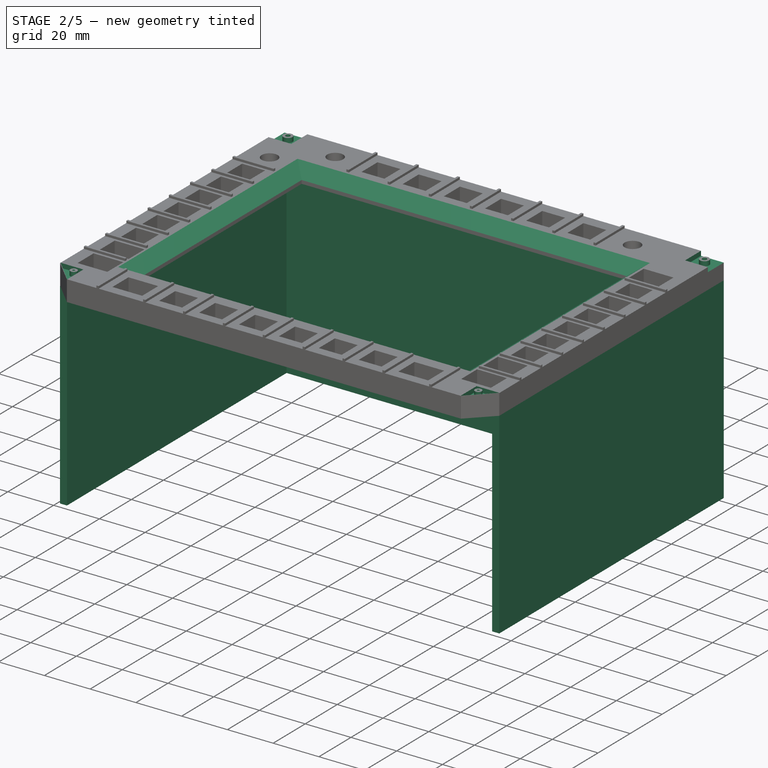
[diagram: stage 2 of 5 — iso view after this stage's code; geometry added in this stage tinted green]
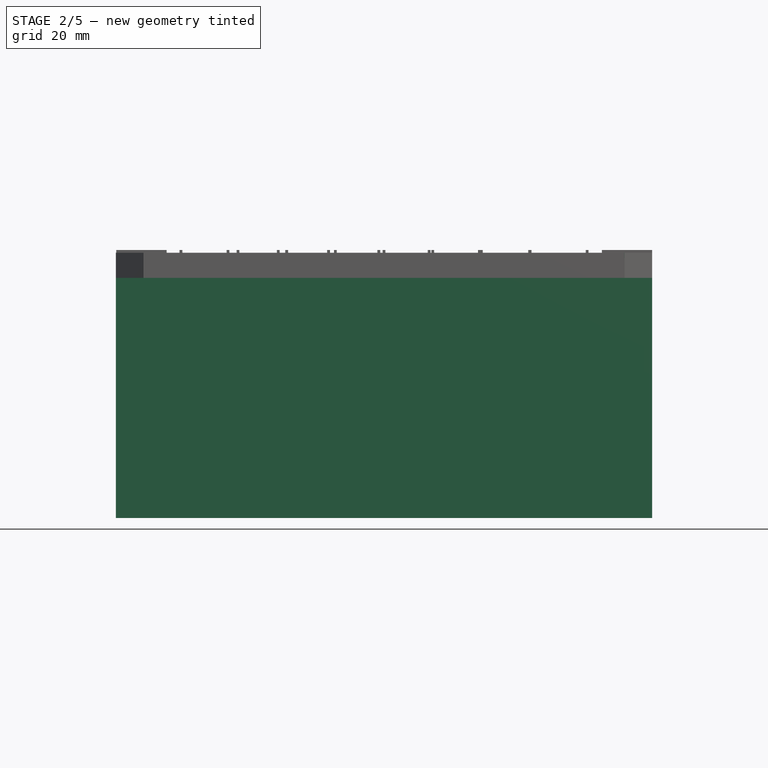
[diagram: stage 2 of 5 — front view after this stage's code; geometry added in this stage tinted green]
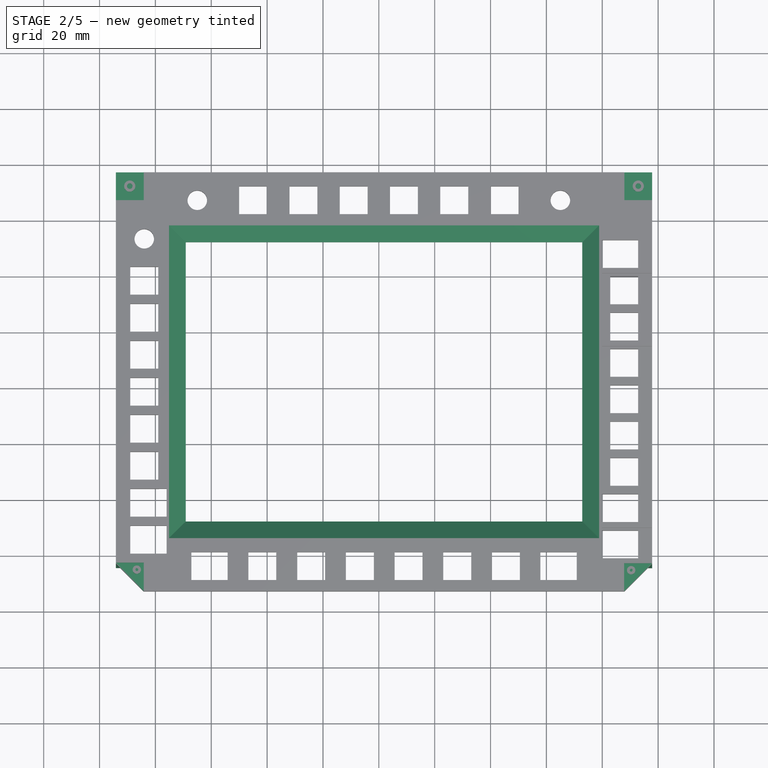
[diagram: stage 2 of 5 — top view after this stage's code; geometry added in this stage tinted green]
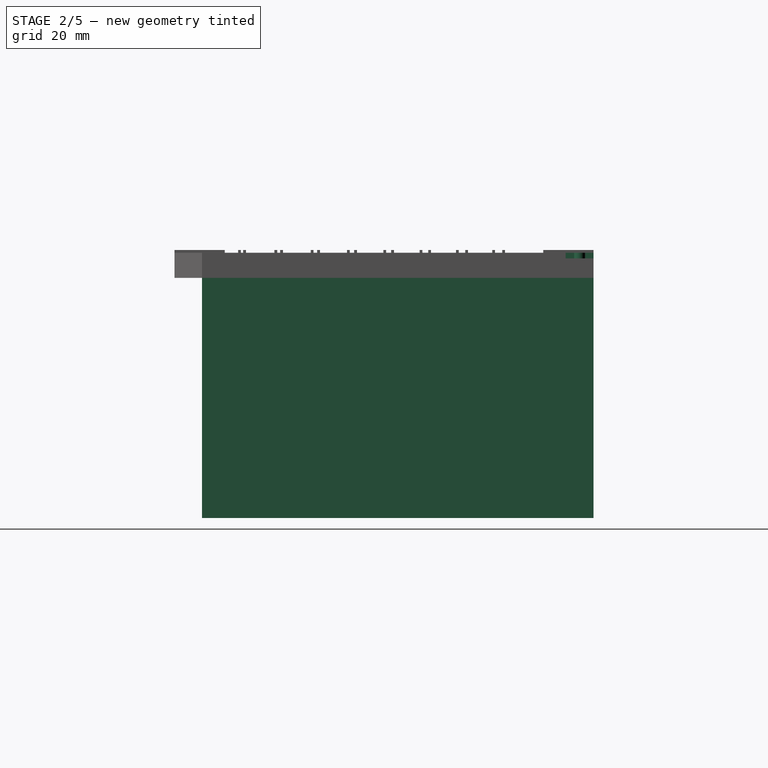
[diagram: stage 2 of 5 — right view after this stage's code; geometry added in this stage tinted green]
FEATURE [PartDesign::Pocket] Pocket004  label="Square Corners"
  BaseFeature = -> Pocket003
  Direction = (0,0,-1)
  Length = 2
  Length2 = 5
  Profile = -> Sketch005
  ReferenceAxis = -> Sketch005 [N_Axis]
  Type = 0
FEATURE [PartDesign::Pocket] Pocket005  label="Triangle Cutouts"
  BaseFeature = -> Pocket004
  Direction = (0,0,-1)
  Length = 2
  Length2 = 5
  Profile = -> Sketch006
  ReferenceAxis = -> Sketch006 [N_Axis]
  Type = 0
FEATURE [PartDesign::Pocket] Pocket006  label="Cab;e Citpits"
  BaseFeature = -> Pocket005
  Direction = (0,0,1)
  Length = 3
  Length2 = 5
  Profile = -> Sketch007
  ReferenceAxis = -> Sketch007 [N_Axis]
  Type = 0
FEATURE [PartDesign::Chamfer] Chamfer
  Angle = 45
  Base = -> Pocket006 [Edge254,Edge255,Edge256,Edge257]
  BaseFeature = -> Pocket006
  ChamferType = 1
  FlipDirection = false
  Size = 6
  Size2 = 4.5
  SupportTransform = false
  UseAllEdges = false
FEATURE [Sketcher::SketchObject] Sketch010  label="box"
  FullyConstrained = true
  MapMode = 5
  Placement = pos=(0,0,0) rot=(1,0,0;3.14159rad)
  Support = -> [Chamfer]
  sketch-geometry (4):
    g0: LineSegment StartX=-94.14 StartY=-75.8 StartZ=0 EndX=97.86 EndY=-75.8 EndZ=0
    g1: LineSegment StartX=97.86 StartY=-75.8 StartZ=0 EndX=97.86 EndY=-72.8 EndZ=0
    g2: LineSegment StartX=97.86 StartY=-72.8 StartZ=0 EndX=-94.14 EndY=-72.8 EndZ=0
    g3: LineSegment StartX=-94.14 StartY=-72.8 StartZ=0 EndX=-94.14 EndY=-75.8 EndZ=0
  constraints (12):
    c: Coincident(g0,g1)
    c: Coincident(g1,g2)
    c: Coincident(g2,g3)
    c: Coincident(g3,g0)
    c: Horizontal(g0)
    c: Horizontal(g2)
    c: Vertical(g1)
    c: Vertical(g3)
    c: DistanceX(g0,g0) = 192
    c: DistanceY(g1,g1) = 3
    c: DistanceX(g-2,g0) = -94.14
    c: DistanceY(g-1,g0) = -75.8
FEATURE [PartDesign::Pad] Pad002  label="Walls003"
  BaseFeature = -> Chamfer
  Direction = (0,0,-1)
  Length = 86
  Length2 = 10
  Profile = -> Sketch010
  ReferenceAxis = -> Sketch010 [N_Axis]
  Type = 0
FEATURE [Sketcher::SketchObject] Sketch011
  FullyConstrained = false
  MapMode = 5
  Placement = pos=(0,0,0) rot=(1,0,0;3.14159rad)
  Support = -> [Pad002]
  sketch-geometry (8):
    g0: LineSegment StartX=97.8529 StartY=-72.8742 StartZ=0 EndX=94.7214 EndY=-72.8742 EndZ=0
    g1: LineSegment StartX=94.7214 StartY=-72.8742 StartZ=0 EndX=94.7214 EndY=64.3504 EndZ=0
    g2: LineSegment StartX=94.7214 StartY=64.3504 StartZ=0 EndX=97.8529 EndY=64.3504 EndZ=0
    g3: LineSegment StartX=97.8529 StartY=64.3504 StartZ=0 EndX=97.8529 EndY=-72.8742 EndZ=0
    g4: LineSegment StartX=-94.1582 StartY=-72.7225 StartZ=0 EndX=-91.124 EndY=-72.7225 EndZ=0
    g5: LineSegment StartX=-91.124 StartY=-72.7225 StartZ=0 EndX=-91.124 EndY=64.3155 EndZ=0
    g6: LineSegment StartX=-91.124 StartY=64.3155 StartZ=0 EndX=-94.1582 EndY=64.3155 EndZ=0
    g7: LineSegment StartX=-94.1582 StartY=64.3155 StartZ=0 EndX=-94.1582 EndY=-72.7225 EndZ=0
  constraints (16):
    c: Coincident(g0,g1)
    c: Coincident(g1,g2)
    c: Coincident(g2,g3)
    c: Coincident(g3,g0)
    c: Horizontal(g0)
    c: Horizontal(g2)
    c: Vertical(g1)
    c: Vertical(g3)
    c: Coincident(g4,g5)
    c: Coincident(g5,g6)
    c: Coincident(g6,g7)
    c: Coincident(g7,g4)
    c: Horizontal(g4)
    c: Horizontal(g6)
    c: Vertical(g5)
    c: Vertical(g7)
FEATURE [PartDesign::Pad] Pad003  label="Walls002"
  BaseFeature = -> Pad002
  Direction = (0,0,-1)
  Length = 86
  Length2 = 10
  Profile = -> Sketch011
  ReferenceAxis = -> Sketch011 [N_Axis]
  Type = 0
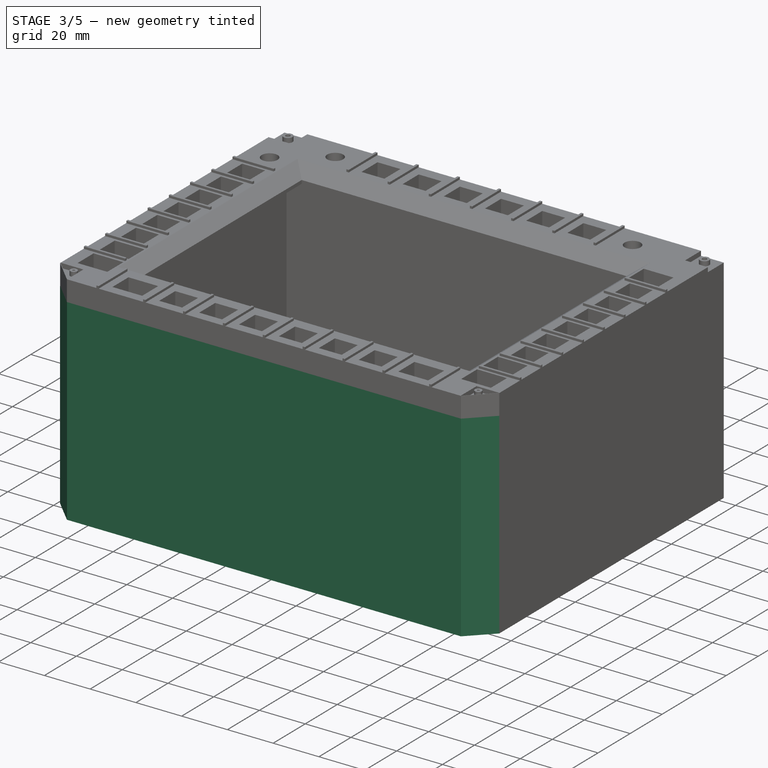
[diagram: stage 3 of 5 — iso view after this stage's code; geometry added in this stage tinted green]
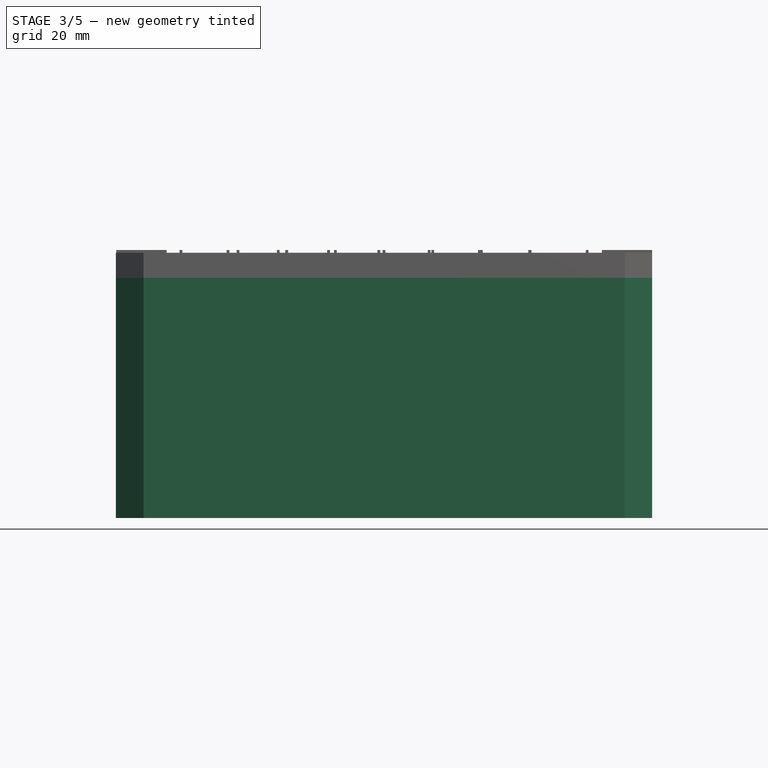
[diagram: stage 3 of 5 — front view after this stage's code; geometry added in this stage tinted green]
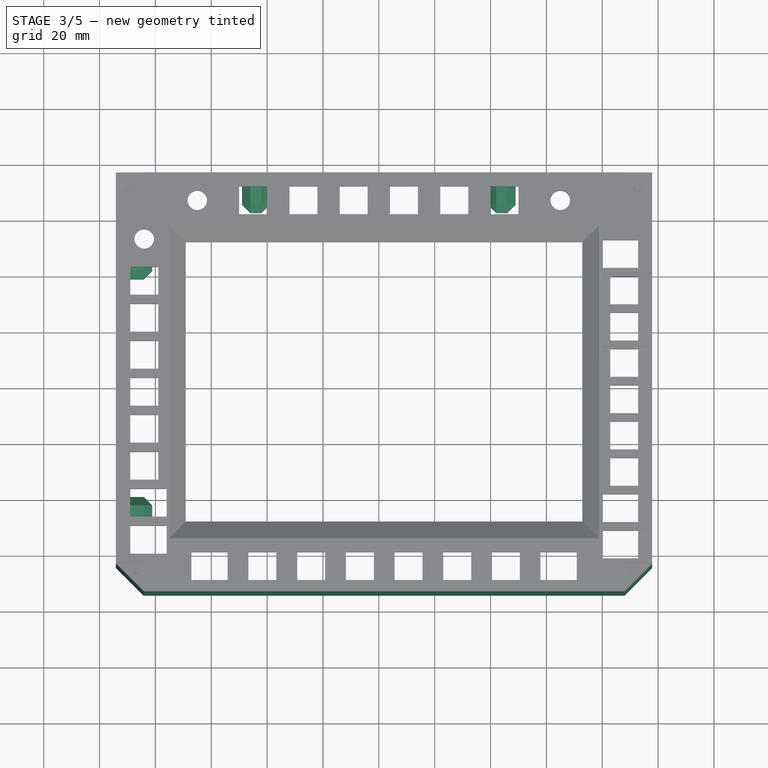
[diagram: stage 3 of 5 — top view after this stage's code; geometry added in this stage tinted green]
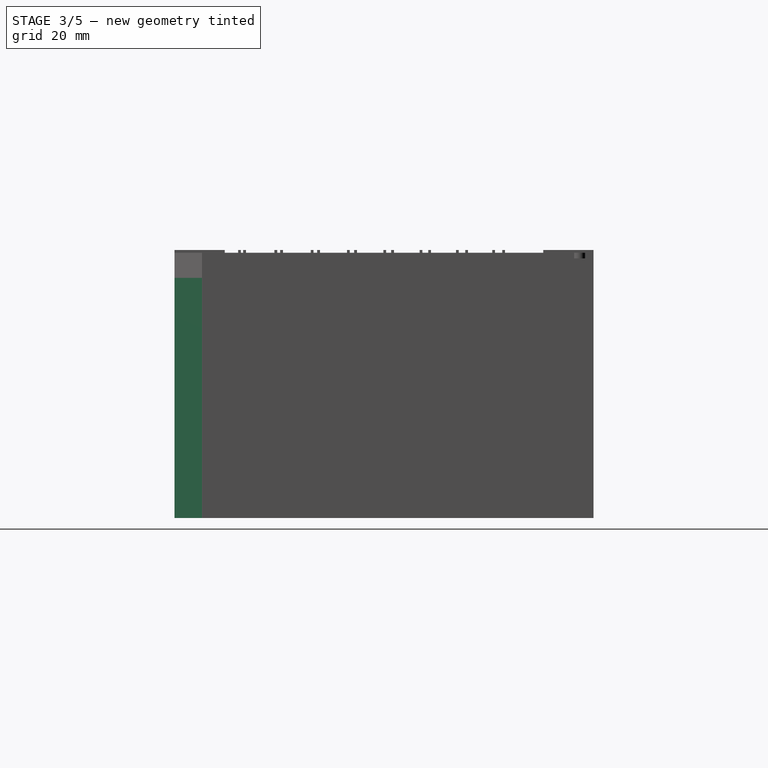
[diagram: stage 3 of 5 — right view after this stage's code; geometry added in this stage tinted green]
FEATURE [Sketcher::SketchObject] Sketch012
  FullyConstrained = false
  MapMode = 5
  Placement = pos=(0,0,0) rot=(1,0,0;3.14159rad)
  Support = -> [Pad003]
  sketch-geometry (8):
    g0: LineSegment StartX=-94.1412 StartY=64.3066 StartZ=0 EndX=-84.2215 EndY=74.1963 EndZ=0
    g1: LineSegment StartX=-84.2215 StartY=74.1963 StartZ=0 EndX=-81.2215 EndY=74.1963 EndZ=0
    g2: LineSegment StartX=-81.2215 StartY=74.1963 StartZ=0 EndX=-91.1287 EndY=64.3066 EndZ=0
    g3: LineSegment StartX=-91.1287 StartY=64.3066 StartZ=0 EndX=-94.1412 EndY=64.3066 EndZ=0
    g4: LineSegment StartX=97.8567 StartY=64.3407 StartZ=0 EndX=94.8567 EndY=64.3407 EndZ=0
    g5: LineSegment StartX=94.8567 StartY=64.3407 StartZ=0 EndX=84.9993 EndY=74.198 EndZ=0
    g6: LineSegment StartX=84.9993 StartY=74.198 StartZ=0 EndX=87.9993 EndY=74.198 EndZ=0
    g7: LineSegment StartX=87.9993 StartY=74.198 StartZ=0 EndX=97.8567 EndY=64.3407 EndZ=0
  constraints (15):
    c: Coincident(g0,g1)
    c: Horizontal(g1)
    c: Coincident(g1,g2)
    c: Coincident(g2,g3)
    c: Coincident(g3,g0)
    c: Horizontal(g3)
    c: DistanceX(g1,g1) = 3
    c: Horizontal(g4)
    c: Coincident(g4,g5)
    c: Coincident(g5,g6)
    c: Horizontal(g6)
    c: Coincident(g6,g7)
    c: Coincident(g7,g4)
    c: DistanceX(g6,g6) = 3
    c: DistanceX(g4,g4) = 3
FEATURE [PartDesign::Pad] Pad004  label="Walls001"
  BaseFeature = -> Pad003
  Direction = (0,0,-1)
  Length = 86
  Length2 = 10
  Profile = -> Sketch012
  ReferenceAxis = -> Sketch012 [N_Axis]
  Type = 0
FEATURE [Sketcher::SketchObject] Sketch013
  FullyConstrained = false
  MapMode = 5
  Placement = pos=(0,0,0) rot=(1,0,0;3.14159rad)
  Support = -> [Pad004]
  sketch-geometry (4):
    g0: LineSegment StartX=85.0077 StartY=74.194 StartZ=0 EndX=-81.2231 EndY=74.194 EndZ=0
    g1: LineSegment StartX=-81.2231 StartY=74.194 StartZ=0 EndX=-84.2211 EndY=71.194 EndZ=0
    g2: LineSegment StartX=-84.2211 StartY=71.194 StartZ=0 EndX=88.3076 EndY=71.194 EndZ=0
    g3: LineSegment StartX=88.3076 StartY=71.194 StartZ=0 EndX=85.0077 EndY=74.194 EndZ=0
  constraints (7):
    c: Horizontal(g0)
    c: Coincident(g0,g1)
    c: Coincident(g1,g2)
    c: Horizontal(g2)
    c: Coincident(g2,g3)
    c: Coincident(g3,g0)
    c: Distance(g0,g2) = 3
FEATURE [PartDesign::Pad] Pad005  label="Walls"
  BaseFeature = -> Pad004
  Direction = (0,0,-1)
  Length = 86
  Length2 = 10
  Profile = -> Sketch013
  ReferenceAxis = -> Sketch013 [N_Axis]
  Type = 0
FEATURE [Sketcher::SketchObject] Sketch021
  FullyConstrained = true
  MapMode = 5
  Placement = pos=(-91.124,0,0) rot=(0.57735,0.57735,0.57735;2.0944rad)
  Support = -> [Pad005]
  sketch-geometry (11):
    g0: LineSegment StartX=0 StartY=-86 StartZ=0 EndX=44 EndY=-86 EndZ=0
    g1: LineSegment StartX=39 StartY=-86 StartZ=0 EndX=39 EndY=-84 EndZ=0
    g2: LineSegment StartX=39 StartY=-84 StartZ=0 EndX=49 EndY=-84 EndZ=0
    g3: LineSegment StartX=49 StartY=-84 StartZ=0 EndX=49 EndY=-74 EndZ=0
    g4: LineSegment StartX=49 StartY=-74 StartZ=0 EndX=39 EndY=-74 EndZ=0
    g5: LineSegment StartX=39 StartY=-74 StartZ=0 EndX=39 EndY=-84 EndZ=0
    g6: LineSegment StartX=39 StartY=-74 StartZ=0 EndX=-39 EndY=-74 EndZ=0
    g7: LineSegment StartX=-39 StartY=-74 StartZ=0 EndX=-49 EndY=-74 EndZ=0
    g8: LineSegment StartX=-49 StartY=-74 StartZ=0 EndX=-49 EndY=-84 EndZ=0
    g9: LineSegment StartX=-49 StartY=-84 StartZ=0 EndX=-39 EndY=-84 EndZ=0
    g10: LineSegment StartX=-39 StartY=-84 StartZ=0 EndX=-39 EndY=-74 EndZ=0
  constraints (33):
    c: PointOnObject(g0,g-2)
    c: Horizontal(g0)
    c: DistanceX(g0,g0) = 44
    c: Vertical(g1)
    c: DistanceY(g1,g1) = 2
    c: DistanceX(g-2,g1) = 39
    c: Coincident(g2,g3)
    c: Coincident(g3,g4)
    c: Coincident(g4,g5)
    c: Coincident(g5,g2)
    c: Horizontal(g2)
    c: Horizontal(g4)
    c: Vertical(g3)
    c: Vertical(g5)
    c: Coincident(g2,g1)
    c: DistanceX(g2,g2) = 10
    c: Distance(g-1,g0) = 86
    c: DistanceY(g3,g3) = 10
    c: DistanceY(g-1,g4) = -74
    c: Coincident(g6,g4)
    c: Horizontal(g6)
    c: DistanceX(g6,g6) = 78
    c: Coincident(g7,g8)
    c: Coincident(g8,g9)
    c: Coincident(g9,g10)
    c: Coincident(g10,g7)
    c: Horizontal(g7)
    c: Horizontal(g9)
    c: Vertical(g8)
    c: Vertical(g10)
    c: Coincident(g7,g6)
    c: DistanceY(g8,g8) = 10
    c: DistanceX(g7,g7) = 10
FEATURE [Sketcher::SketchObject] Sketch022
  FullyConstrained = true
  MapMode = 5
  Placement = pos=(0,72.8,0) rot=(1,0,0;1.5708rad)
  Support = -> [Pad005]
  sketch-geometry (12):
    g0: LineSegment StartX=0 StartY=0 StartZ=0 EndX=0 EndY=-86 EndZ=0
    g1: LineSegment StartX=0 StartY=-86 StartZ=0 EndX=39 EndY=-86 EndZ=0
    g2: LineSegment StartX=39 StartY=-86 StartZ=0 EndX=39 EndY=-84 EndZ=0
    g3: LineSegment StartX=39 StartY=-84 StartZ=0 EndX=49 EndY=-84 EndZ=0
    g4: LineSegment StartX=49 StartY=-84 StartZ=0 EndX=49 EndY=-74 EndZ=0
    g5: LineSegment StartX=49 StartY=-74 StartZ=0 EndX=39 EndY=-74 EndZ=0
    g6: LineSegment StartX=39 StartY=-74 StartZ=0 EndX=39 EndY=-84 EndZ=0
    g7: LineSegment StartX=39 StartY=-74 StartZ=0 EndX=-39 EndY=-74 EndZ=0
    g8: LineSegment StartX=-39 StartY=-74 StartZ=0 EndX=-49 EndY=-74 EndZ=0
    g9: LineSegment StartX=-49 StartY=-74 StartZ=0 EndX=-49 EndY=-84 EndZ=0
    g10: LineSegment StartX=-49 StartY=-84 StartZ=0 EndX=-39 EndY=-84 EndZ=0
    g11: LineSegment StartX=-39 StartY=-84 StartZ=0 EndX=-39 EndY=-74 EndZ=0
  constraints (34):
    c: Coincident(g0,g-1)
    c: PointOnObject(g0,g-2)
    c: DistanceY(g0,g0) = 86
    c: Coincident(g1,g0)
    c: Horizontal(g1)
    c: DistanceX(g1,g1) = 39
    c: Coincident(g2,g1)
    c: Vertical(g2)
    c: DistanceY(g2,g2) = 2
    c: Coincident(g3,g4)
    c: Coincident(g4,g5)
    c: Coincident(g5,g6)
    c: Coincident(g6,g3)
    c: Horizontal(g3)
    c: Horizontal(g5)
    c: Vertical(g4)
    c: Vertical(g6)
    c: Coincident(g3,g2)
    c: DistanceX(g3,g3) = 10
    c: DistanceY(g4,g4) = 10
    c: Coincident(g7,g5)
    c: Horizontal(g7)
    c: DistanceX(g7,g7) = 78
    c: Coincident(g8,g9)
    c: Coincident(g9,g10)
    c: Coincident(g10,g11)
    c: Coincident(g11,g8)
    c: Horizontal(g8)
    c: Horizontal(g10)
    c: Vertical(g9)
    c: Vertical(g11)
    c: Coincident(g8,g7)
    c: DistanceY(g11,g11) = 10
    c: DistanceX(g10,g10) = 10
FEATURE [Sketcher::SketchObject] Sketch023
  FullyConstrained = true
  MapMode = 5
  Placement = pos=(94.7214,0,0) rot=(0.57735,-0.57735,-0.57735;2.0944rad)
  Support = -> [Pad005]
  sketch-geometry (11):
    g0: LineSegment StartX=0 StartY=0 StartZ=0 EndX=0 EndY=-84 EndZ=0
    g1: LineSegment StartX=0 StartY=-84 StartZ=0 EndX=39 EndY=-84 EndZ=0
    g2: LineSegment StartX=39 StartY=-84 StartZ=0 EndX=49 EndY=-84 EndZ=0
    g3: LineSegment StartX=49 StartY=-84 StartZ=0 EndX=49 EndY=-74 EndZ=0
    g4: LineSegment StartX=49 StartY=-74 StartZ=0 EndX=39 EndY=-74 EndZ=0
    g5: LineSegment StartX=39 StartY=-74 StartZ=0 EndX=39 EndY=-84 EndZ=0
    g6: LineSegment StartX=39 StartY=-74 StartZ=0 EndX=-39 EndY=-74 EndZ=0
    g7: LineSegment StartX=-39 StartY=-74 StartZ=0 EndX=-49 EndY=-74 EndZ=0
    g8: LineSegment StartX=-49 StartY=-74 StartZ=0 EndX=-49 EndY=-84 EndZ=0
    g9: LineSegment StartX=-49 StartY=-84 StartZ=0 EndX=-39 EndY=-84 EndZ=0
    g10: LineSegment StartX=-39 StartY=-84 StartZ=0 EndX=-39 EndY=-74 EndZ=0
  constraints (33):
    c: PointOnObject(g0,g-2)
    c: DistanceY(g0,g0) = 84
    c: PointOnObject(g0,g-1)
    c: Coincident(g1,g0)
    c: Horizontal(g1)
    c: PointOnObject(g1,g-2)
    c: DistanceX(g1,g1) = 39
    c: Coincident(g2,g3)
    c: Coincident(g3,g4)
    c: Coincident(g4,g5)
    c: Coincident(g5,g2)
    c: Horizontal(g2)
    c: Horizontal(g4)
    c: Vertical(g3)
    c: Vertical(g5)
    c: Coincident(g2,g1)
    c: DistanceX(g4,g4) = 10
    c: DistanceY(g3,g3) = 10
    c: PointOnObject(g6,g5)
    c: Horizontal(g6)
    c: DistanceX(g6,g6) = 78
    c: Coincident(g7,g8)
    c: Coincident(g8,g9)
    c: Coincident(g9,g10)
    c: Coincident(g10,g7)
    c: Horizontal(g7)
    c: Horizontal(g9)
    c: Vertical(g8)
    c: Vertical(g10)
    c: Coincident(g7,g6)
    c: DistanceY(g10,g10) = 10
    c: DistanceX(g9,g9) = 10
    c: DistanceY(g-1,g7) = -74
FEATURE [Sketcher::SketchObject] Sketch024
  FullyConstrained = true
  MapMode = 5
  Placement = pos=(0,0,-86) rot=(1,0,0;3.14159rad)
  Support = -> [Pocket007]
  sketch-geometry (20):
    g0: LineSegment StartX=0 StartY=0 StartZ=0 EndX=0 EndY=-67.2 EndZ=0
    g1: LineSegment StartX=0 StartY=0 StartZ=0 EndX=89.44 EndY=0 EndZ=0
    g2: LineSegment StartX=0 StartY=0 StartZ=0 EndX=0 EndY=66.2 EndZ=0
    g3: LineSegment StartX=0 StartY=0 StartZ=0 EndX=-85.52 EndY=0 EndZ=0
    g4: LineSegment StartX=-85.52 StartY=0 StartZ=0 EndX=-85.52 EndY=-44 EndZ=0
    g5: Circle CenterX=-85.52 CenterY=-44 CenterZ=0 NormalX=0 NormalY=0 NormalZ=1 AngleXU=0 Radius=1
    g6: LineSegment StartX=-85.52 StartY=0 StartZ=0 EndX=-85.52 EndY=44 EndZ=0
    g7: Circle CenterX=-85.52 CenterY=44 CenterZ=0 NormalX=0 NormalY=0 NormalZ=1 AngleXU=0 Radius=1
    g8: LineSegment StartX=89.44 StartY=0 StartZ=0 EndX=89.44 EndY=44 EndZ=0
    g9: LineSegment StartX=89.44 StartY=0 StartZ=0 EndX=89.44 EndY=-44 EndZ=0
    g10: Circle CenterX=89.44 CenterY=44 CenterZ=0 NormalX=0 NormalY=0 NormalZ=1 AngleXU=0 Radius=1
    g11: Circle CenterX=89.44 CenterY=-44 CenterZ=0 NormalX=0 NormalY=0 NormalZ=1 AngleXU=0 Radius=1
    g12: LineSegment StartX=0 StartY=66.2 StartZ=0 EndX=66 EndY=66.2 EndZ=0
    g13: LineSegment StartX=0 StartY=66.2 StartZ=0 EndX=-66 EndY=66.2 EndZ=0
    g14: Circle CenterX=-66 CenterY=66.2 CenterZ=0 NormalX=0 NormalY=0 NormalZ=1 AngleXU=0 Radius=1
    g15: Circle CenterX=66 CenterY=66.2 CenterZ=0 NormalX=0 NormalY=0 NormalZ=1 AngleXU=0 Radius=1
    g16: LineSegment StartX=0 StartY=-67.2 StartZ=0 EndX=44 EndY=-67.2 EndZ=0
    g17: LineSegment StartX=0 StartY=-67.2 StartZ=0 EndX=-44 EndY=-67.2 EndZ=0
    g18: Circle CenterX=-44 CenterY=-67.2 CenterZ=0 NormalX=0 NormalY=0 NormalZ=1 AngleXU=0 Radius=1
    g19: Circle CenterX=44 CenterY=-67.2 CenterZ=0 NormalX=0 NormalY=0 NormalZ=1 AngleXU=0 Radius=1
  constraints (52):
    c: Coincident(g0,g-1)
    c: PointOnObject(g0,g-2)
    c: Coincident(g1,g0)
    c: PointOnObject(g1,g-1)
    c: Coincident(g2,g0)
    c: PointOnObject(g2,g-2)
    c: Coincident(g3,g0)
    c: PointOnObject(g3,g-1)
    c: DistanceY(g0,g0) = 67.2
    c: DistanceY(g2,g2) = 66.2
    c: DistanceX(g1,g1) = 89.44
    c: DistanceX(g3,g3) = 85.52
    c: Coincident(g4,g3)
    c: Vertical(g4)
    c: DistanceY(g4,g4) = 44
    c: Coincident(g5,g4)
    c: Diameter(g5) = 2
    c: Coincident(g6,g3)
    c: Vertical(g6)
    c: DistanceY(g6,g6) = 44
    c: Coincident(g7,g6)
    c: Diameter(g7) = 2
    c: Coincident(g8,g1)
    c: Vertical(g8)
    c: Coincident(g9,g1)
    c: Vertical(g9)
    c: DistanceY(g8,g8) = 44
    c: DistanceY(g9,g9) = 44
    c: Coincident(g10,g8)
    c: Coincident(g11,g9)
    c: Diameter(g11) = 2
    c: Diameter(g10) = 2
    c: Coincident(g12,g2)
    c: Horizontal(g12)
    c: Coincident(g13,g2)
    c: Horizontal(g13)
    c: DistanceX(g13,g13) = 66
    c: DistanceX(g12,g12) = 66
    c: Coincident(g14,g13)
    c: Coincident(g15,g12)
    c: Diameter(g15) = 2
    c: Diameter(g14) = 2
    c: Coincident(g16,g0)
    c: Horizontal(g16)
    c: Coincident(g17,g0)
    c: Horizontal(g17)
    c: DistanceX(g17,g17) = 44
    c: DistanceX(g16,g16) = 44
    c: Coincident(g18,g17)
    c: Coincident(g19,g16)
    c: Diameter(g18) = 2
    c: Diameter(g19) = 2
FEATURE [PartDesign::Pad] Pad007  label="ScrewBase1"
  BaseFeature = -> Pad005
  Direction = (1,0,0)
  Length = 10
  Length2 = 10
  Profile = -> Sketch021
  ReferenceAxis = -> Sketch021 [N_Axis]
  Type = 0
FEATURE [PartDesign::Chamfer] Chamfer001  label="ScrewChamfer"
  Angle = 45
  Base = -> Pad007 [Edge1113,Edge1117,Edge1119,Edge1118,Edge1114]
  BaseFeature = -> Pad007
  ChamferType = 0
  FlipDirection = false
  Size = 3
  Size2 = 1
  SupportTransform = false
  UseAllEdges = false
FEATURE [PartDesign::Chamfer] Chamfer002  label="ScrewChamfer001"
  Angle = 45
  Base = -> Chamfer001 [Edge191,Edge195,Edge192,Edge193,Edge189]
  BaseFeature = -> Chamfer001
  ChamferType = 0
  FlipDirection = false
  Size = 3
  Size2 = 1
  SupportTransform = false
  UseAllEdges = false
FEATURE [PartDesign::Pad] Pad008  label="ScrewBase2"
  BaseFeature = -> Chamfer002
  Direction = (0,-1,2e-16)
  Length = 10
  Length2 = 10
  Profile = -> Sketch022
  ReferenceAxis = -> Sketch022 [N_Axis]
  Type = 0
FEATURE [PartDesign::Chamfer] Chamfer003  label="ScrewChamfer002"
  Angle = 45
  Base = -> Pad008 [Edge805,Edge811,Edge809,Edge810,Edge806,Edge799,Edge800,Edge796,Edge798,Edge802]
  BaseFeature = -> Pad008
  ChamferType = 0
  FlipDirection = false
  Size = 3
  Size2 = 1
  SupportTransform = false
  UseAllEdges = false
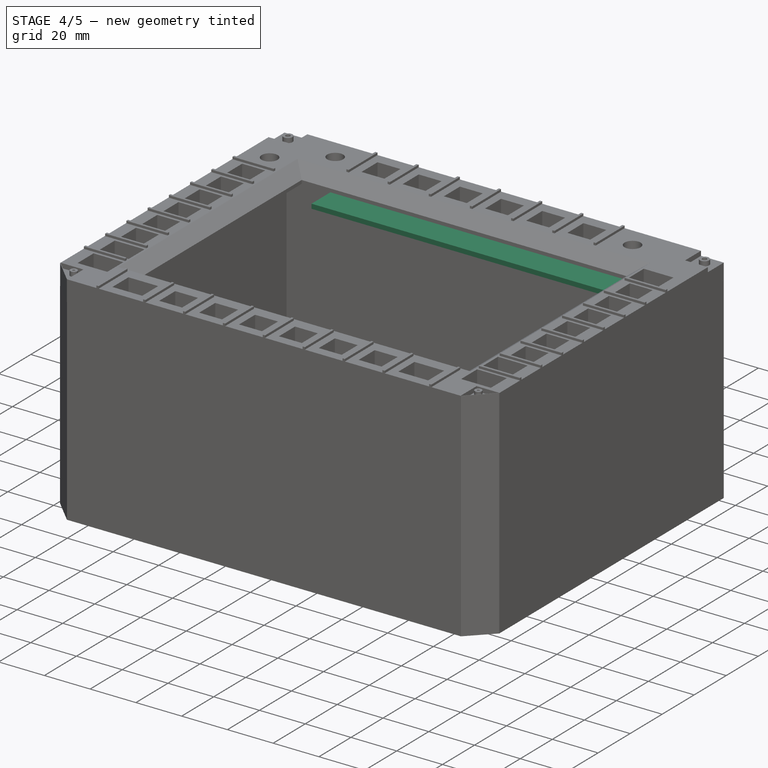
[diagram: stage 4 of 5 — iso view after this stage's code; geometry added in this stage tinted green]
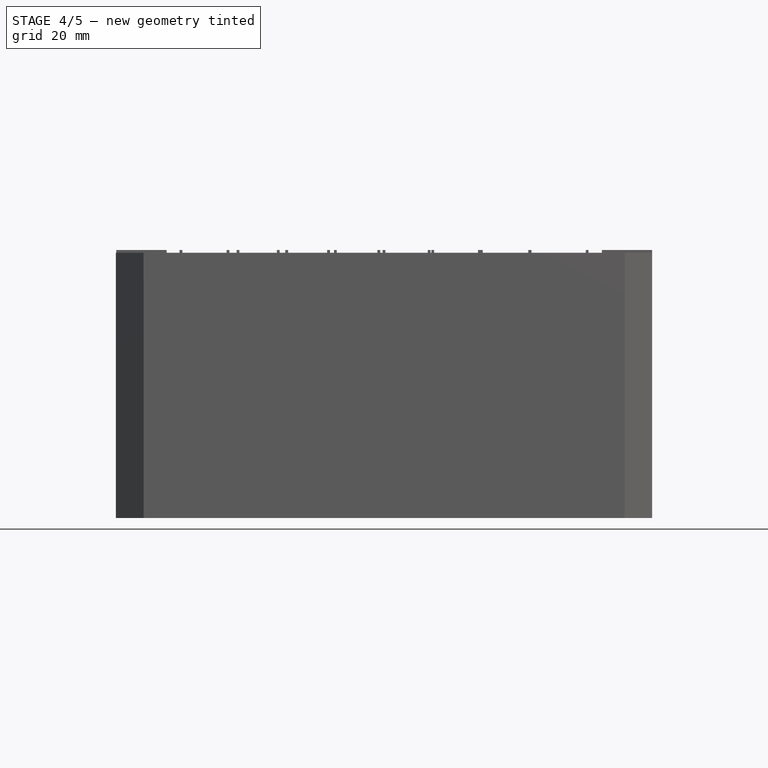
[diagram: stage 4 of 5 — front view after this stage's code; geometry added in this stage tinted green]
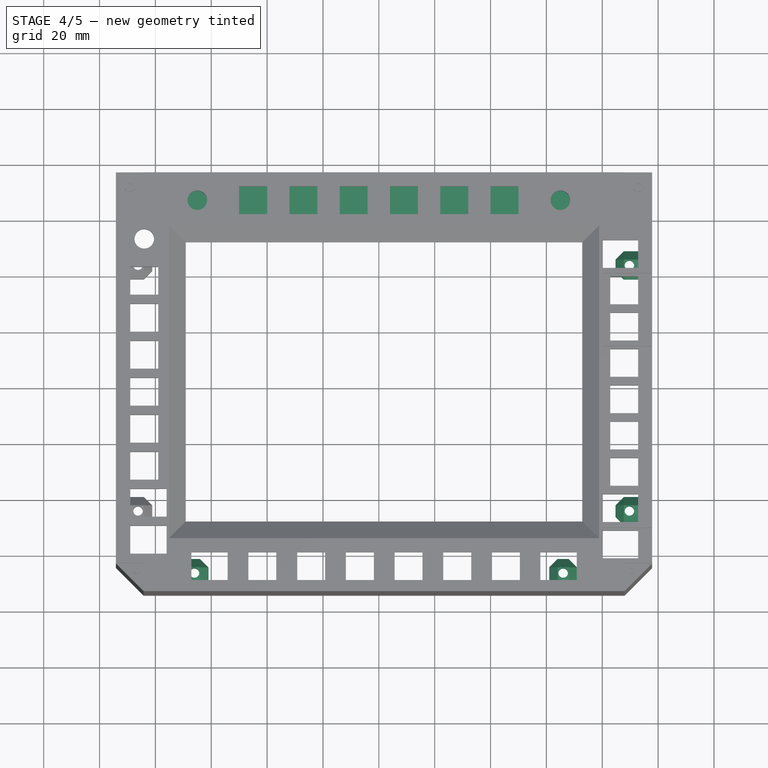
[diagram: stage 4 of 5 — top view after this stage's code; geometry added in this stage tinted green]
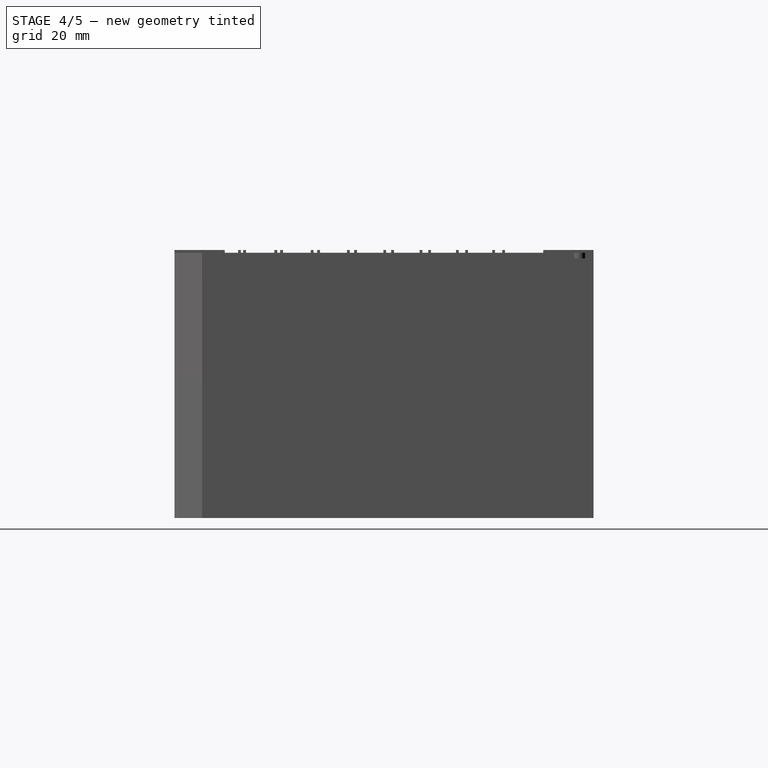
[diagram: stage 4 of 5 — right view after this stage's code; geometry added in this stage tinted green]
FEATURE [PartDesign::Pad] Pad009  label="ScrewBase3"
  BaseFeature = -> Chamfer003
  Direction = (0,1,-2e-16)
  Length = 10
  Length2 = 10
  Profile = -> Sketch014
  ReferenceAxis = -> Sketch014 [N_Axis]
  Type = 0
FEATURE [PartDesign::Pad] Pad010  label="ScrewBase4"
  BaseFeature = -> Pad009
  Direction = (-1,0,0)
  Length = 10
  Length2 = 10
  Profile = -> Sketch023
  ReferenceAxis = -> Sketch023 [N_Axis]
  Type = 0
FEATURE [PartDesign::Chamfer] Chamfer004  label="ScrewChamfer003"
  Angle = 45
  Base = -> Pad010 [Edge226,Edge233,Edge228,Edge230,Edge227,Edge239,Edge237,Edge240,Edge238,Edge241]
  BaseFeature = -> Pad010
  ChamferType = 0
  FlipDirection = false
  Size = 3
  Size2 = 1
  SupportTransform = false
  UseAllEdges = false
FEATURE [PartDesign::Chamfer] Chamfer005  label="ScrewChamfer004"
  Angle = 45
  Base = -> Chamfer004 [Edge864,Edge859,Edge861,Edge866,Edge865,Edge856,Edge857,Edge858,Edge855,Edge854]
  BaseFeature = -> Chamfer004
  ChamferType = 0
  FlipDirection = false
  Size = 3
  Size2 = 1
  SupportTransform = false
  UseAllEdges = false
FEATURE [PartDesign::Body] Body001  label="BackCap001"
  Group = -> [Sketch019,Pad006,Sketch020,Pocket007,Sketch024,Hole]
  Origin = -> Origin002
  Tip = -> Hole
FEATURE [Sketcher::SketchObject] Sketch025  label="InnerScrewYou"
  FullyConstrained = true
  MapMode = 5
  Placement = pos=(0,-1.87e-14,-84) rot=(1,0,0;3.14159rad)
  Support = -> [Chamfer005]
  sketch-geometry (20):
    g0: LineSegment StartX=0 StartY=0 StartZ=0 EndX=0 EndY=66.23 EndZ=0
    g1: LineSegment StartX=0 StartY=66.23 StartZ=0 EndX=66 EndY=66.23 EndZ=0
    g2: LineSegment StartX=0 StartY=66.23 StartZ=0 EndX=-66 EndY=66.23 EndZ=0
    g3: Circle CenterX=-66 CenterY=66.23 CenterZ=0 NormalX=0 NormalY=0 NormalZ=1 AngleXU=0 Radius=1
    g4: Circle CenterX=66 CenterY=66.23 CenterZ=0 NormalX=0 NormalY=0 NormalZ=1 AngleXU=0 Radius=1
    g5: LineSegment StartX=0 StartY=0 StartZ=0 EndX=-86.2282 EndY=0 EndZ=0
    g6: LineSegment StartX=-86.2282 StartY=0 StartZ=0 EndX=-86.2282 EndY=44 EndZ=0
    g7: LineSegment StartX=-86.2282 StartY=0 StartZ=0 EndX=-86.2282 EndY=-44 EndZ=0
    g8: Circle CenterX=-86.2282 CenterY=44 CenterZ=0 NormalX=0 NormalY=0 NormalZ=1 AngleXU=0 Radius=1
    g9: Circle CenterX=-86.2282 CenterY=-44 CenterZ=0 NormalX=0 NormalY=0 NormalZ=1 AngleXU=0 Radius=1
    g10: LineSegment StartX=0 StartY=0 StartZ=0 EndX=89.72 EndY=0 EndZ=0
    g11: LineSegment StartX=89.72 StartY=0 StartZ=0 EndX=89.72 EndY=-44 EndZ=0
    g12: LineSegment StartX=89.72 StartY=0 StartZ=0 EndX=89.72 EndY=44 EndZ=0
    g13: Circle CenterX=89.72 CenterY=44 CenterZ=0 NormalX=0 NormalY=0 NormalZ=1 AngleXU=0 Radius=1
    g14: Circle CenterX=89.72 CenterY=-44 CenterZ=0 NormalX=0 NormalY=0 NormalZ=1 AngleXU=0 Radius=1
    g15: LineSegment StartX=0 StartY=0 StartZ=0 EndX=0 EndY=-67.83 EndZ=0
    g16: LineSegment StartX=0 StartY=-67.83 StartZ=0 EndX=44 EndY=-67.83 EndZ=0
    g17: LineSegment StartX=0 StartY=-67.83 StartZ=0 EndX=-44 EndY=-67.83 EndZ=0
    g18: Circle CenterX=44 CenterY=-67.83 CenterZ=0 NormalX=0 NormalY=0 NormalZ=1 AngleXU=0 Radius=1
    g19: Circle CenterX=-44 CenterY=-67.83 CenterZ=0 NormalX=0 NormalY=0 NormalZ=1 AngleXU=0 Radius=1
  constraints (52):
    c: Coincident(g0,g-1)
    c: PointOnObject(g0,g-2)
    c: DistanceY(g0,g0) = 66.23
    c: Coincident(g1,g0)
    c: Horizontal(g1)
    c: Coincident(g2,g0)
    c: Horizontal(g2)
    c: DistanceX(g2,g2) = 66
    c: DistanceX(g1,g1) = 66
    c: Coincident(g3,g2)
    c: Diameter(g3) = 2
    c: Coincident(g4,g1)
    c: Diameter(g4) = 2
    c: Coincident(g5,g0)
    c: PointOnObject(g5,g-1)
    c: DistanceX(g5,g5) = 86.2282
    c: Coincident(g6,g5)
    c: Vertical(g6)
    c: Coincident(g7,g5)
    c: Vertical(g7)
    c: DistanceY(g7,g7) = 44
    c: DistanceY(g6,g6) = 44
    c: Coincident(g8,g6)
    c: Coincident(g9,g7)
    c: Diameter(g9) = 2
    c: Diameter(g8) = 2
    c: Coincident(g10,g0)
    c: PointOnObject(g10,g-1)
    c: DistanceX(g10,g10) = 89.72
    c: Coincident(g11,g10)
    c: Vertical(g11)
    c: Coincident(g12,g10)
    c: Vertical(g12)
    c: DistanceY(g12,g12) = 44
    c: DistanceY(g11,g11) = 44
    c: Coincident(g13,g12)
    c: Coincident(g14,g11)
    c: Diameter(g13) = 2
    c: Diameter(g14) = 2
    c: Coincident(g15,g0)
    c: PointOnObject(g15,g-2)
    c: Coincident(g16,g15)
    c: Horizontal(g16)
    c: Coincident(g17,g15)
    c: Horizontal(g17)
    c: DistanceX(g16,g16) = 44
    c: DistanceX(g17,g17) = 44
    c: DistanceY(g15,g15) = 67.83
    c: Coincident(g18,g16)
    c: Coincident(g19,g17)
    c: Diameter(g19) = 2
    c: Diameter(g18) = 2
FEATURE [PartDesign::Hole] Hole001  label="Inner Screw Holes"
  BaseFeature = -> Chamfer005
  CustomThreadClearance = 0
  Depth = 25
  DepthType = 0
  Diameter = 3.4
  DrillForDepth = false
  DrillPoint = 1
  DrillPointAngle = 118
  HoleCutCountersinkAngle = 90
  HoleCutCustomValues = false
  HoleCutDepth = 0
  HoleCutDiameter = 6.1
  HoleCutType = 0
  ModelThread = false
  Profile = -> Sketch025
  Tapered = false
  TaperedAngle = 90
  ThreadClass = 0
  ThreadDepth = 25
  ThreadDepthType = 0
  ThreadDirection = 0
  ThreadFit = 0
  ThreadSize = 9
  ThreadType = 1
  Threaded = false
  UseCustomThreadClearance = false
FEATURE [Sketcher::SketchObject] Sketch026
  FullyConstrained = true
  MapMode = 5
  Placement = pos=(0,-71.194,0) rot=(0,0.707107,0.707107;3.14159rad)
  Support = -> [Hole001]
  sketch-geometry (5):
    g0: LineSegment StartX=0 StartY=0 StartZ=0 EndX=0 EndY=-9.4 EndZ=0
    g1: LineSegment StartX=72.5 StartY=-9.4 StartZ=0 EndX=-72.5 EndY=-9.4 EndZ=0
    g2: LineSegment StartX=-72.5 StartY=-9.4 StartZ=0 EndX=-72.5 EndY=-11.4 EndZ=0
    g3: LineSegment StartX=-72.5 StartY=-11.4 StartZ=0 EndX=72.5 EndY=-11.4 EndZ=0
    g4: LineSegment StartX=72.5 StartY=-11.4 StartZ=0 EndX=72.5 EndY=-9.4 EndZ=0
  constraints (15):
    c: PointOnObject(g0,g-2)
    c: PointOnObject(g0,g-2)
    c: DistanceY(g0,g0) = 9.4
    c: PointOnObject(g0,g-1)
    c: Coincident(g1,g2)
    c: Coincident(g2,g3)
    c: Coincident(g3,g4)
    c: Coincident(g4,g1)
    c: Horizontal(g1)
    c: Vertical(g2)
    c: Vertical(g4)
    c: PointOnObject(g0,g1)
    c: DistanceY(g4,g4) = 2
    c: DistanceX(g3,g3) = 145
    c: Symmetric(g3,g2,g-2)
FEATURE [Sketcher::SketchObject] Sketch027
  FullyConstrained = true
  MapMode = 5
  Placement = pos=(94.7214,0,0) rot=(0.57735,-0.57735,-0.57735;2.0944rad)
  Support = -> [Hole001]
  sketch-geometry (5):
    g0: LineSegment StartX=0 StartY=0 StartZ=0 EndX=0 EndY=-9.4 EndZ=0
    g1: LineSegment StartX=-52.07 StartY=-9.4 StartZ=0 EndX=61.93 EndY=-9.4 EndZ=0
    g2: LineSegment StartX=61.93 StartY=-9.4 StartZ=0 EndX=61.93 EndY=-11.4 EndZ=0
    g3: LineSegment StartX=61.93 StartY=-11.4 StartZ=0 EndX=-52.07 EndY=-11.4 EndZ=0
    g4: LineSegment StartX=-52.07 StartY=-11.4 StartZ=0 EndX=-52.07 EndY=-9.4 EndZ=0
  constraints (15):
    c: Coincident(g0,g-1)
    c: PointOnObject(g0,g-2)
    c: DistanceY(g0,g0) = 9.4
    c: Coincident(g1,g2)
    c: Coincident(g2,g3)
    c: Coincident(g3,g4)
    c: Coincident(g4,g1)
    c: Horizontal(g1)
    c: Horizontal(g3)
    c: Vertical(g2)
    c: Vertical(g4)
    c: PointOnObject(g0,g1)
    c: DistanceX(g1,g1) = 114
    c: DistanceY(g4,g4) = 2
    c: DistanceX(g-2,g2) = 61.93
FEATURE [Sketcher::SketchObject] Sketch028
  FullyConstrained = true
  MapMode = 5
  Placement = pos=(-91.124,0,0) rot=(0.57735,0.57735,0.57735;2.0944rad)
  Support = -> [Hole001]
  sketch-geometry (5):
    g0: LineSegment StartX=0 StartY=0 StartZ=0 EndX=0 EndY=-9.4 EndZ=0
    g1: LineSegment StartX=-61.13 StartY=-9.4 StartZ=0 EndX=42.87 EndY=-9.4 EndZ=0
    g2: LineSegment StartX=42.87 StartY=-9.4 StartZ=0 EndX=42.87 EndY=-11.4 EndZ=0
    g3: LineSegment StartX=42.87 StartY=-11.4 StartZ=0 EndX=-61.13 EndY=-11.4 EndZ=0
    g4: LineSegment StartX=-61.13 StartY=-11.4 StartZ=0 EndX=-61.13 EndY=-9.4 EndZ=0
  constraints (15):
    c: Coincident(g0,g-1)
    c: PointOnObject(g0,g-2)
    c: DistanceY(g0,g0) = 9.4
    c: Coincident(g1,g2)
    c: Coincident(g2,g3)
    c: Coincident(g3,g4)
    c: Coincident(g4,g1)
    c: Horizontal(g1)
    c: Horizontal(g3)
    c: Vertical(g2)
    c: Vertical(g4)
    c: DistanceY(g2,g2) = 2
    c: DistanceX(g1,g1) = 104
    c: PointOnObject(g0,g1)
    c: DistanceX(g-2,g2) = 42.87
FEATURE [Sketcher::SketchObject] Sketch029
  FullyConstrained = true
  MapMode = 5
  Placement = pos=(0,72.8,0) rot=(1,0,0;1.5708rad)
  Support = -> [Hole001]
  sketch-geometry (5):
    g0: LineSegment StartX=0 StartY=0 StartZ=0 EndX=0 EndY=-9.4 EndZ=0
    g1: LineSegment StartX=-71.85 StartY=-9.4 StartZ=0 EndX=76.79 EndY=-9.4 EndZ=0
    g2: LineSegment StartX=76.79 StartY=-9.4 StartZ=0 EndX=76.79 EndY=-11.4 EndZ=0
    g3: LineSegment StartX=76.79 StartY=-11.4 StartZ=0 EndX=-71.85 EndY=-11.4 EndZ=0
    g4: LineSegment StartX=-71.85 StartY=-11.4 StartZ=0 EndX=-71.85 EndY=-9.4 EndZ=0
  constraints (16):
    c: PointOnObject(g0,g-2)
    c: PointOnObject(g0,g-2)
    c: DistanceY(g0,g0) = 9.4
    c: PointOnObject(g0,g-1)
    c: Coincident(g1,g2)
    c: Coincident(g2,g3)
    c: Coincident(g3,g4)
    c: Coincident(g4,g1)
    c: Horizontal(g1)
    c: Horizontal(g3)
    c: Vertical(g2)
    c: Vertical(g4)
    c: DistanceY(g2,g2) = 2
    c: PointOnObject(g0,g1)
    c: DistanceX(g3,g3) = 148.64
    c: DistanceX(g-2,g2) = 76.79
FEATURE [PartDesign::Pad] Pad011  label="Circuit1"
  BaseFeature = -> Hole001
  Direction = (0,-1,2e-16)
  Length = 12
  Length2 = 10
  Profile = -> Sketch029
  ReferenceAxis = -> Sketch029 [N_Axis]
  Type = 0
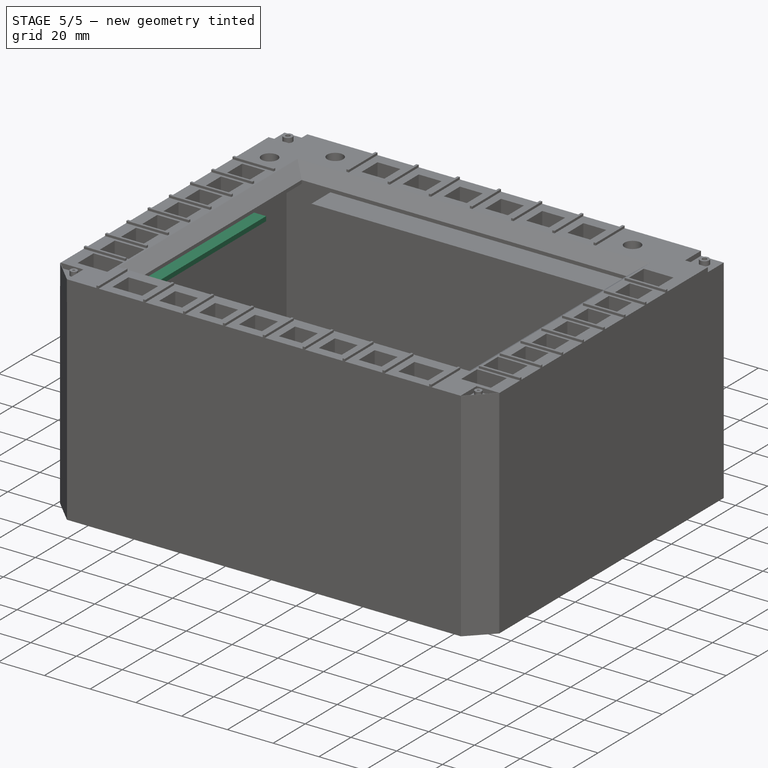
[diagram: stage 5 of 5 — iso view after this stage's code; geometry added in this stage tinted green]
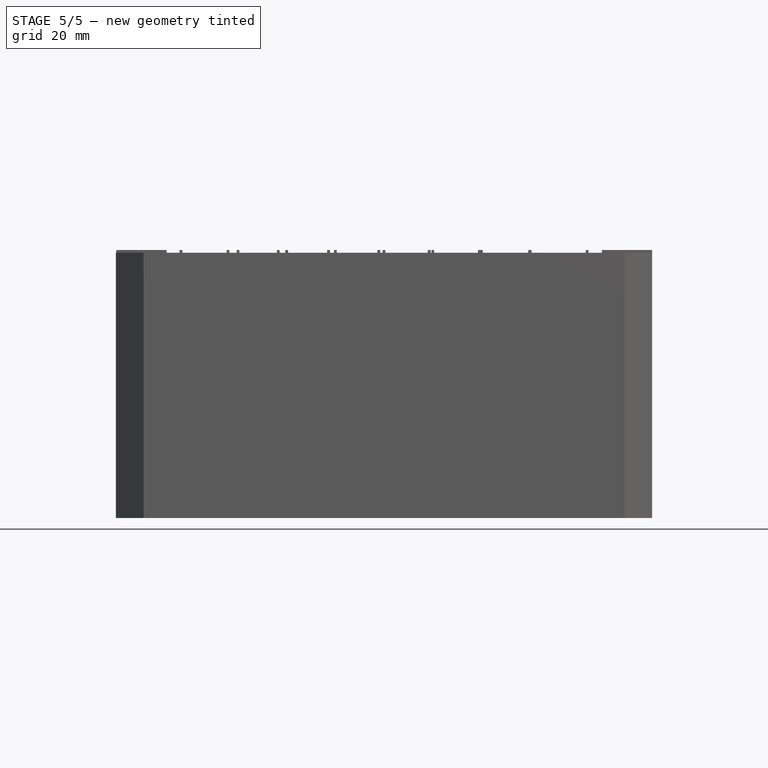
[diagram: stage 5 of 5 — front view after this stage's code; geometry added in this stage tinted green]
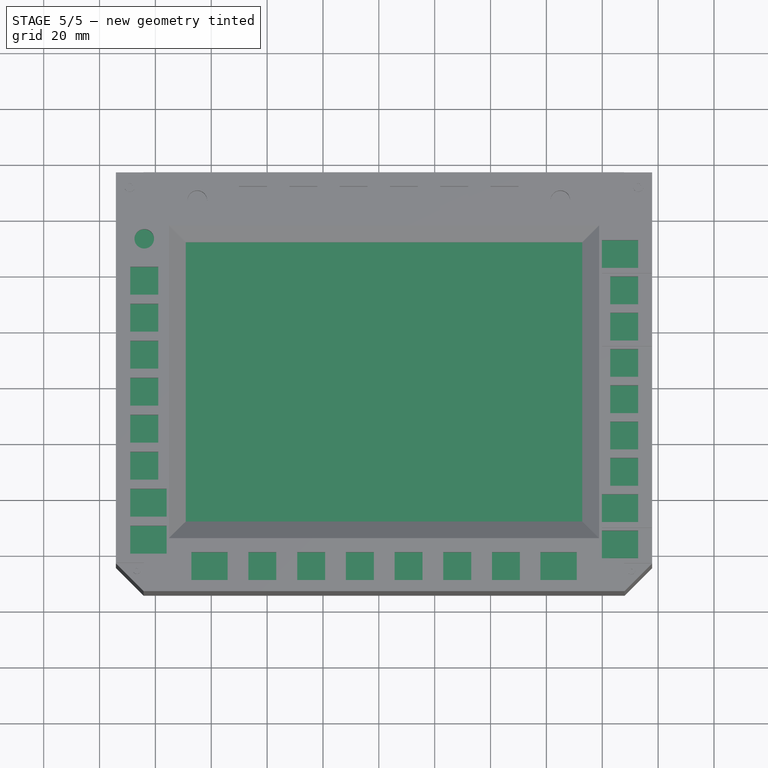
[diagram: stage 5 of 5 — top view after this stage's code; geometry added in this stage tinted green]
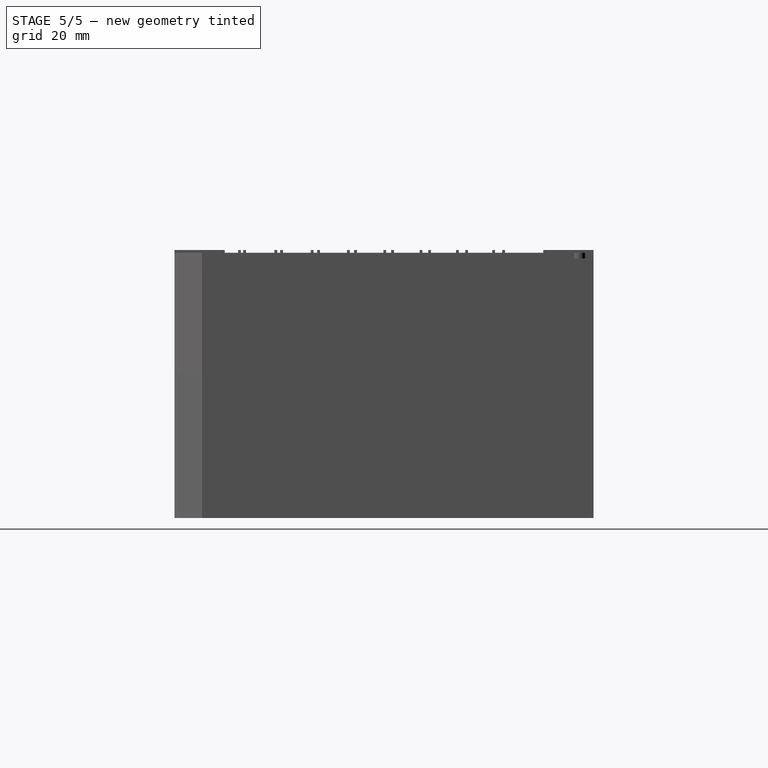
[diagram: stage 5 of 5 — right view after this stage's code; geometry added in this stage tinted green]
FEATURE [Sketcher::SketchObject] Sketch014
  FullyConstrained = true
  MapMode = 5
  Placement = pos=(0,-71.194,0) rot=(0,0.707107,0.707107;3.14159rad)
  Support = -> [Pad005]
  sketch-geometry (17):
    g0: LineSegment StartX=-27 StartY=-84 StartZ=0 EndX=-27 EndY=-74 EndZ=0
    g1: LineSegment StartX=-27 StartY=-74 StartZ=0 EndX=-17 EndY=-74 EndZ=0
    g2: LineSegment StartX=-17 StartY=-74 StartZ=0 EndX=-17 EndY=-84 EndZ=0
    g3: LineSegment StartX=17 StartY=-84 StartZ=0 EndX=17 EndY=-74 EndZ=0
    g4: LineSegment StartX=17 StartY=-74 StartZ=0 EndX=27 EndY=-74 EndZ=0
    g5: LineSegment StartX=71 StartY=-84 StartZ=0 EndX=71 EndY=-74 EndZ=0
    g6: LineSegment StartX=71 StartY=-74 StartZ=0 EndX=61 EndY=-74 EndZ=0
    g7: LineSegment StartX=61 StartY=-74 StartZ=0 EndX=61 EndY=-84 EndZ=0
    g8: LineSegment StartX=27 StartY=-74 StartZ=0 EndX=27 EndY=-84 EndZ=0
    g9: LineSegment StartX=17 StartY=-84 StartZ=0 EndX=27 EndY=-84 EndZ=0
    g10: LineSegment StartX=61 StartY=-84 StartZ=0 EndX=71 EndY=-84 EndZ=0
    g11: LineSegment StartX=-27 StartY=-84 StartZ=0 EndX=-17 EndY=-84 EndZ=0
    g12: LineSegment StartX=-27 StartY=-74 StartZ=0 EndX=-61 EndY=-74 EndZ=0
    g13: LineSegment StartX=-61 StartY=-74 StartZ=0 EndX=-71 EndY=-74 EndZ=0
    g14: LineSegment StartX=-61 StartY=-74 StartZ=0 EndX=-61 EndY=-84 EndZ=0
    g15: LineSegment StartX=-71 StartY=-74 StartZ=0 EndX=-71 EndY=-84 EndZ=0
    g16: LineSegment StartX=-61 StartY=-84 StartZ=0 EndX=-71 EndY=-84 EndZ=0
  constraints (50):
    c: Vertical(g0)
    c: Coincident(g0,g1)
    c: Horizontal(g1)
    c: Coincident(g1,g2)
    c: Vertical(g2)
    c: Vertical(g3)
    c: Coincident(g3,g4)
    c: Coincident(g5,g6)
    c: Horizontal(g6)
    c: Coincident(g6,g7)
    c: Horizontal(g4)
    c: Coincident(g8,g4)
    c: Vertical(g8)
    c: DistanceX(g4,g4) = 10
    c: DistanceY(g8,g8) = 10
    c: Vertical(g5)
    c: Vertical(g7)
    c: DistanceX(g6,g6) = 10
    c: DistanceY(g7,g7) = 10
    c: Coincident(g9,g3)
    c: Coincident(g9,g8)
    c: Horizontal(g9)
    c: Coincident(g10,g7)
    c: Coincident(g10,g5)
    c: Horizontal(g10)
    c: DistanceX(g-2,g3) = 17
    c: DistanceX(g-2,g7) = 61
    c: DistanceY(g-1,g4) = -74
    c: DistanceY(g-1,g6) = -74
    c: DistanceY(g-1,g1) = -74
    c: DistanceX(g-2,g0) = -27
    c: DistanceY(g-1,g0) = -84
    c: Coincident(g11,g0)
    c: Coincident(g11,g2)
    c: Horizontal(g11)
    c: DistanceX(g1,g1) = 10
    c: Coincident(g12,g0)
    c: Horizontal(g12)
    c: DistanceX(g12,g12) = 34
    c: Coincident(g13,g12)
    c: Horizontal(g13)
    c: DistanceX(g13,g13) = 10
    c: Coincident(g14,g12)
    c: Vertical(g14)
    c: DistanceY(g14,g14) = 10
    c: Coincident(g15,g13)
    c: Vertical(g15)
    c: DistanceY(g15,g15) = 10
    c: Coincident(g16,g14)
    c: Coincident(g16,g15)
FEATURE [App::Part] Part  label="Back Cap"
  Origin = -> Origin001
FEATURE [Sketcher::SketchObject] Sketch019  label="BackCap"
  AttachmentOffset = pos=(0,0,-86) rot=(0,0,1;0rad)
  FullyConstrained = true
  MapMode = 5
  Placement = pos=(0,0,-86) rot=(0,0,1;0rad)
  Support = -> [XY_Plane002]
  sketch-geometry (6):
    g0: LineSegment StartX=-90.5 StartY=72.13 StartZ=0 EndX=94.5 EndY=72.13 EndZ=0
    g1: LineSegment StartX=94.5 StartY=72.13 StartZ=0 EndX=94.5 EndY=-64.37 EndZ=0
    g2: LineSegment StartX=94.5 StartY=-64.37 StartZ=0 EndX=88 EndY=-70.87 EndZ=0
    g3: LineSegment StartX=88 StartY=-70.87 StartZ=0 EndX=-84 EndY=-70.87 EndZ=0
    g4: LineSegment StartX=-84 StartY=-70.87 StartZ=0 EndX=-90.5 EndY=-64.37 EndZ=0
    g5: LineSegment StartX=-90.5 StartY=-64.37 StartZ=0 EndX=-90.5 EndY=72.13 EndZ=0
  constraints (18):
    c: Horizontal(g0)
    c: Coincident(g0,g1)
    c: Vertical(g1)
    c: Coincident(g1,g2)
    c: Coincident(g2,g3)
    c: Horizontal(g3)
    c: Coincident(g3,g4)
    c: Coincident(g4,g5)
    c: Coincident(g5,g0)
    c: Vertical(g5)
    c: DistanceY(g5,g5) = 136.5
    c: DistanceX(g0,g0) = 185
    c: DistanceX(g3,g3) = 172
    c: Equal(g1,g5)
    c: Angle(g2,g3) = 2.35619
    c: Angle(g3,g4) = 2.35619
    c: DistanceX(g-2,g0) = 94.5
    c: Distance(g-1,g3) = 70.87
FEATURE [PartDesign::Pad] Pad006
  Direction = (0,0,1)
  Length = 2
  Length2 = 10
  Profile = -> Sketch019
  ReferenceAxis = -> Sketch019 [N_Axis]
  Type = 0
FEATURE [Sketcher::SketchObject] Sketch020
  FullyConstrained = true
  MapMode = 5
  Placement = pos=(0,0,-86) rot=(1,0,0;3.14159rad)
  Support = -> [Pad006]
  sketch-geometry (5):
    g0: LineSegment StartX=0 StartY=0 StartZ=0 EndX=0 EndY=71.19 EndZ=0
    g1: LineSegment StartX=-34 StartY=71.19 StartZ=0 EndX=34 EndY=71.19 EndZ=0
    g2: LineSegment StartX=34 StartY=71.19 StartZ=0 EndX=34 EndY=51.19 EndZ=0
    g3: LineSegment StartX=34 StartY=51.19 StartZ=0 EndX=-34 EndY=51.19 EndZ=0
    g4: LineSegment StartX=-34 StartY=51.19 StartZ=0 EndX=-34 EndY=71.19 EndZ=0
  constraints (14):
    c: Coincident(g0,g-1)
    c: PointOnObject(g0,g-2)
    c: Coincident(g1,g2)
    c: Coincident(g2,g3)
    c: Coincident(g3,g4)
    c: Coincident(g4,g1)
    c: Horizontal(g3)
    c: Vertical(g2)
    c: Vertical(g4)
    c: DistanceY(g0,g0) = 71.19
    c: PointOnObject(g0,g1)
    c: Symmetric(g1,g1,g0)
    c: DistanceX(g1,g1) = 68
    c: DistanceY(g2,g2) = 20
FEATURE [PartDesign::Pocket] Pocket007
  BaseFeature = -> Pad006
  Direction = (0,0,1)
  Length = 2
  Length2 = 5
  Profile = -> Sketch020
  ReferenceAxis = -> Sketch020 [N_Axis]
  Type = 0
FEATURE [PartDesign::Hole] Hole
  BaseFeature = -> Pocket007
  CustomThreadClearance = 0
  Depth = 472.343
  DepthType = 1
  Diameter = 3.4
  DrillForDepth = false
  DrillPoint = 1
  DrillPointAngle = 118
  HoleCutCountersinkAngle = 90
  HoleCutCustomValues = false
  HoleCutDepth = 0
  HoleCutDiameter = 6.1
  HoleCutType = 0
  ModelThread = false
  Profile = -> Sketch024
  Tapered = false
  TaperedAngle = 90
  ThreadClass = 0
  ThreadDepth = 472.343
  ThreadDepthType = 0
  ThreadDirection = 0
  ThreadFit = 0
  ThreadSize = 9
  ThreadType = 1
  Threaded = false
  UseCustomThreadClearance = false
FEATURE [PartDesign::Pad] Pad012  label="Circuit2"
  BaseFeature = -> Pad011
  Direction = (0,1,-2e-16)
  Length = 12
  Length2 = 10
  Profile = -> Sketch026
  ReferenceAxis = -> Sketch026 [N_Axis]
  Type = 0
FEATURE [PartDesign::Pad] Pad013  label="Circuit3"
  BaseFeature = -> Pad012
  Direction = (1,0,0)
  Length = 12
  Length2 = 10
  Profile = -> Sketch028
  ReferenceAxis = -> Sketch028 [N_Axis]
  Type = 0
FEATURE [PartDesign::Pad] Pad014  label="Circuit4"
  BaseFeature = -> Pad013
  Direction = (-1,0,0)
  Length = 12
  Length2 = 10
  Profile = -> Sketch027
  ReferenceAxis = -> Sketch027 [N_Axis]
  Type = 0
FEATURE [PartDesign::Body] Body  label="AH64Bezel"
  Group = -> [Sketch,Pad,Sketch001,Pocket,Sketch002,Sketch003,Sketch004,Sketch005,Sketch006,Sketch007,Pocket001,Pocket002,Pad001,Sketch009,Pocket003,Pocket004,Pocket005,Pocket006,Chamfer,Sketch010,Pad002,Sketch011,Pad003,Sketch012,Pad004,Sketch013,Pad005,Sketch014,Sketch021,Sketch022,Sketch023,Pad007,Chamfer001,Chamfer002,Pad008,Chamfer003,Pad009,Pad010,Chamfer004,Chamfer005,Sketch025,Hole001,Sketch026,+7 more]
  Origin = -> Origin
  Tip = -> Pad014
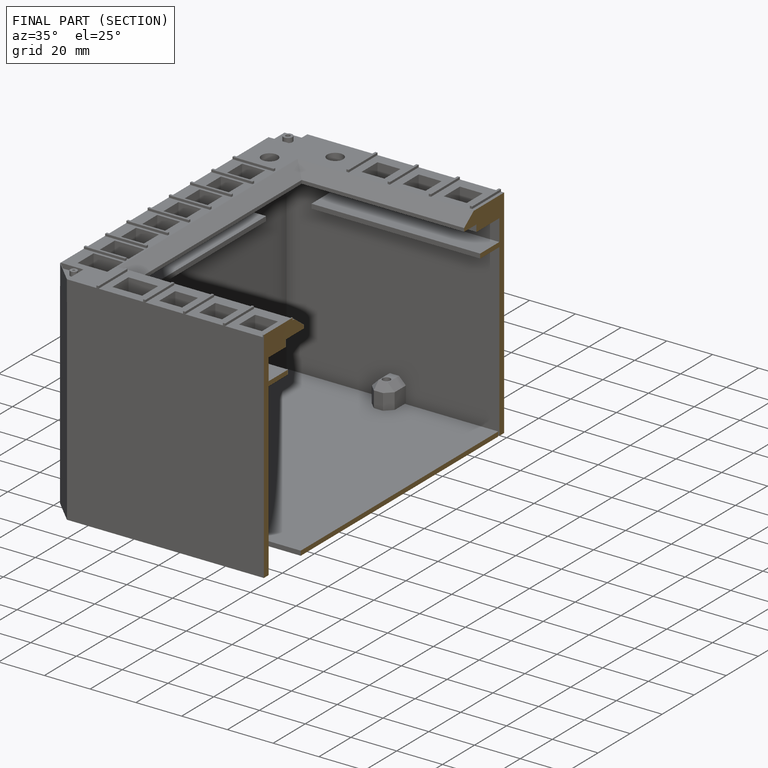
[diagram: finished part — half-section view (interior)]
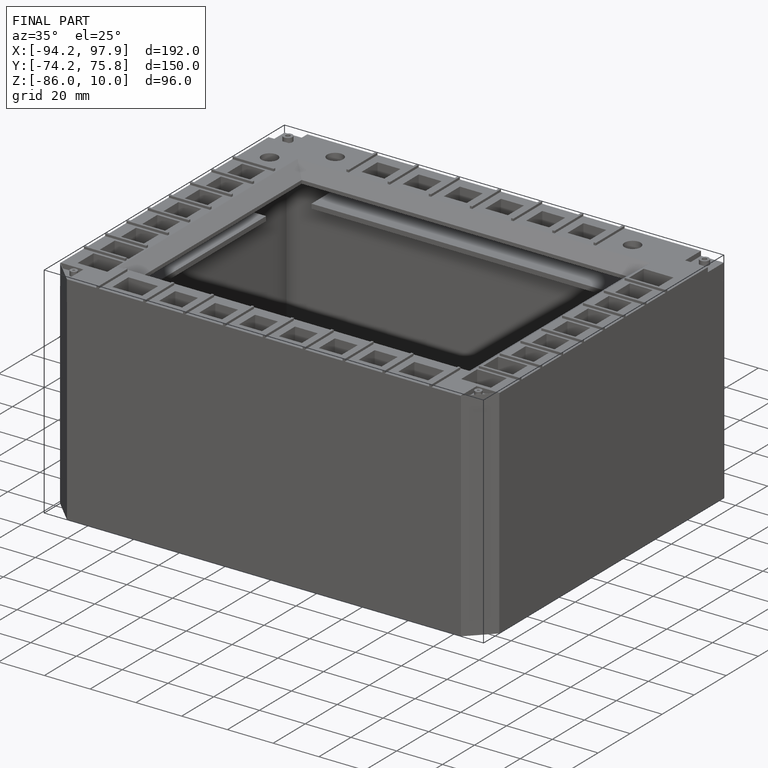
[diagram: finished part — iso view with bounding-box wireframe]
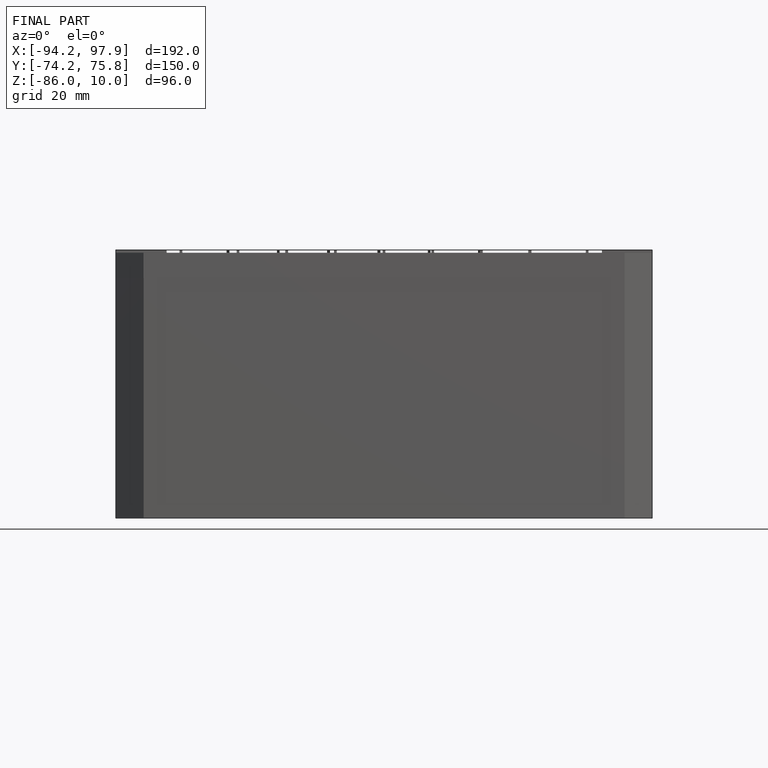
[diagram: finished part — front view with bounding-box wireframe]
